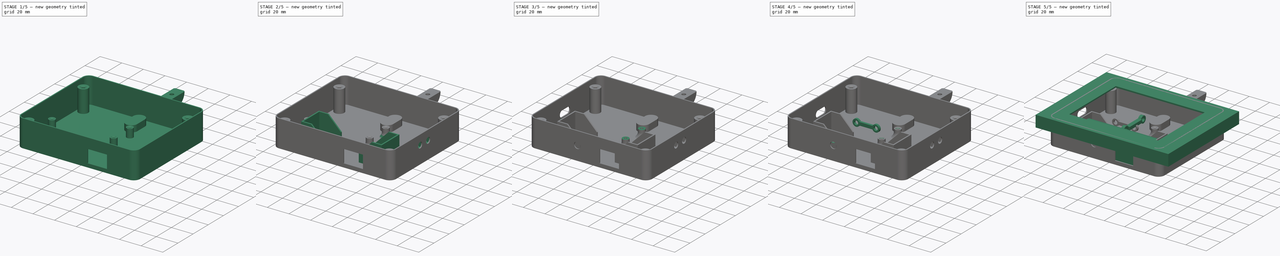
[diagram: build sequence overview — one tinted view per stage of 5, left to right]
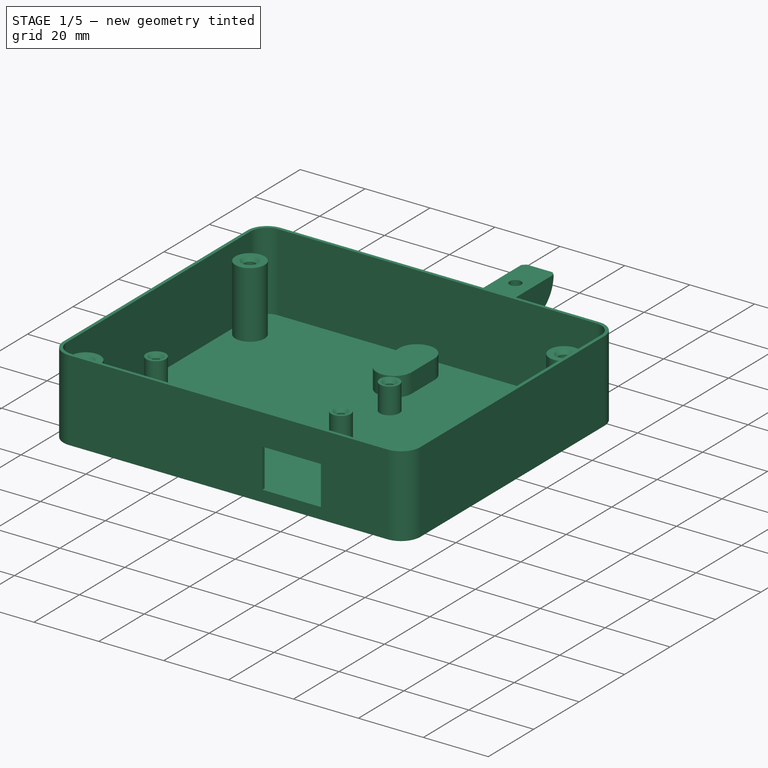
[diagram: stage 1 of 5 — iso view after this stage's code; geometry added in this stage tinted green]
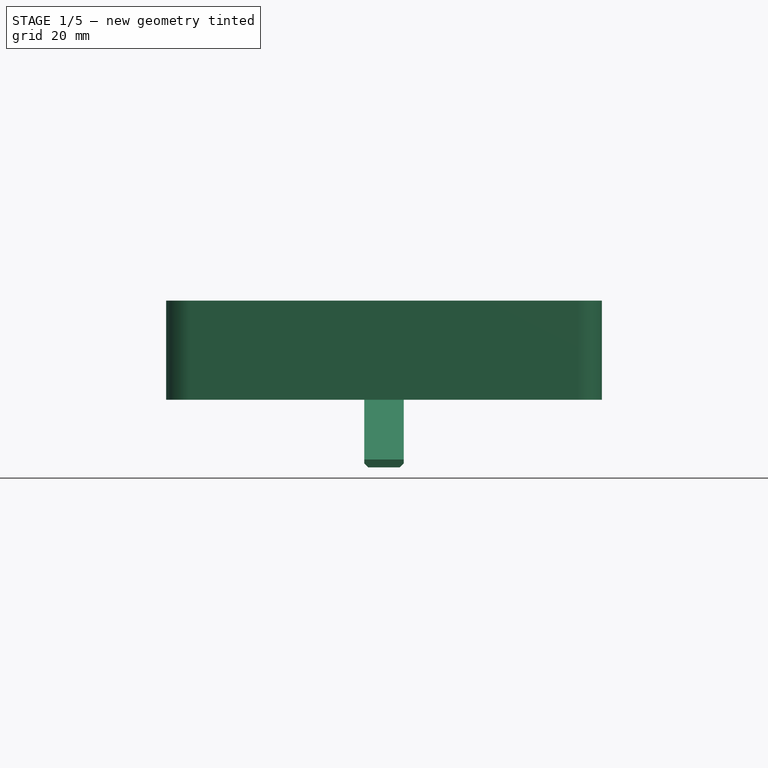
[diagram: stage 1 of 5 — front view after this stage's code; geometry added in this stage tinted green]
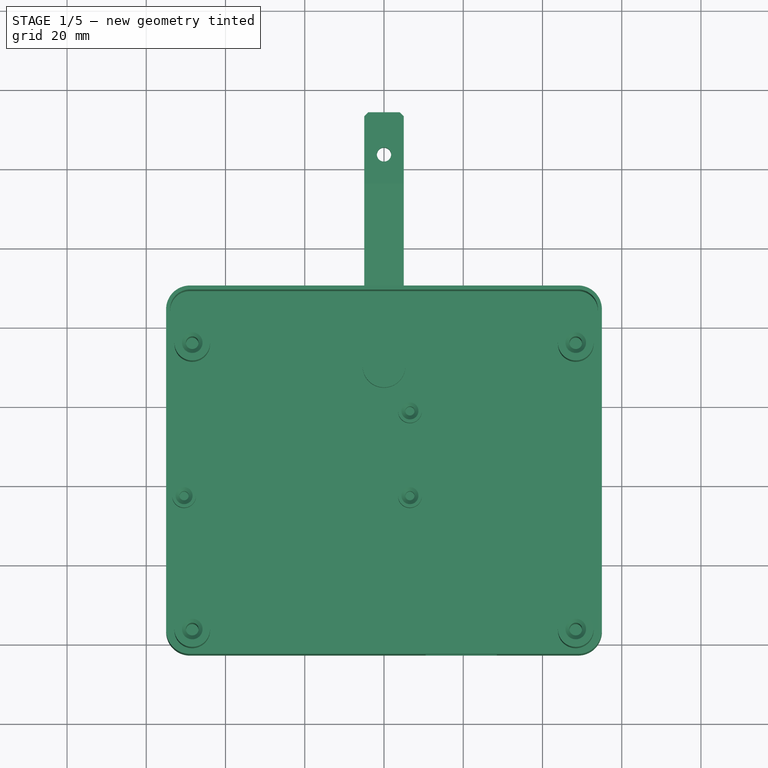
[diagram: stage 1 of 5 — top view after this stage's code; geometry added in this stage tinted green]
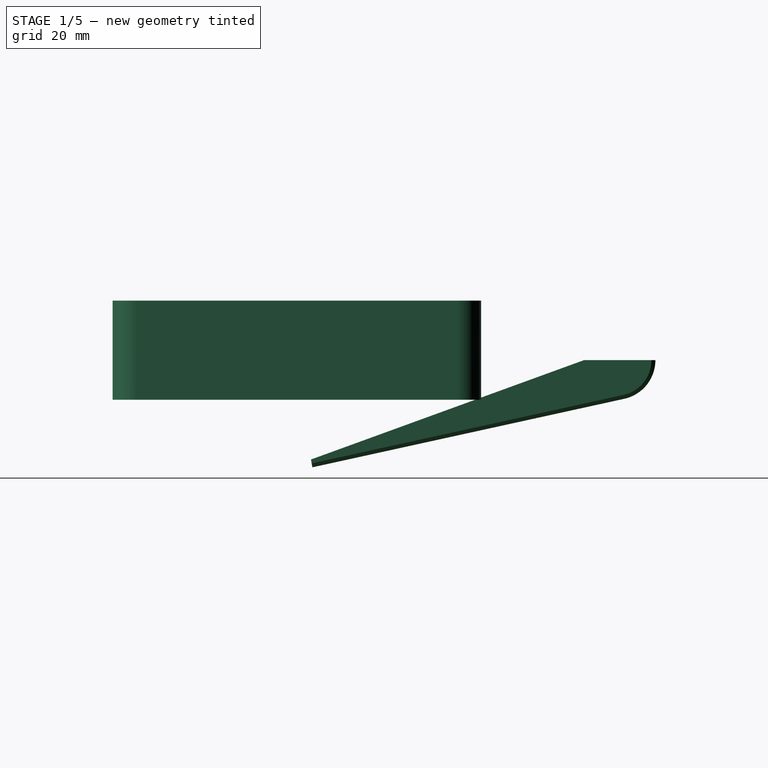
[diagram: stage 1 of 5 — right view after this stage's code; geometry added in this stage tinted green]
FCSTD DOCUMENT  (FreeCAD 0.20R)
Label: WallFrame_bwy42
License: All rights reserved
LicenseURL: http://en.wikipedia.org/wiki/All_rights_reserved
objects: Sketcher::SketchObject×32, Part::Feature×27, PartDesign::Pocket×17, PartDesign::Pad×14, App::Part×12, PartDesign::Chamfer×5, PartDesign::Body×5, PartDesign::FeatureBase×2, PartDesign::Draft×2, Part::Cylinder×1, Part::Box×1, PartDesign::Revolution×1, PartDesign::Fillet×1
note: 148 computed .brp shape members not serialized (recipe doc carries the construction recipe); baked Part::Feature solids carry a one-line shape summary decoded from their .brp

FEATURE [Part::Feature] Body001003002  label="Box"
  shape: bbox 110 x 93 x 25 mm, 57 faces (baked)
FEATURE [PartDesign::FeatureBase] BaseFeature
  BaseFeature = -> Body001003002
FEATURE [Sketcher::SketchObject] Sketch
  FullyConstrained = true
  MapMode = 5
  Placement = pos=(-2.4e-15,-1.2e-14,-24) rot=(0,0,1;0rad)
  Support = -> [BaseFeature]
  sketch-geometry (10):
    g0: Circle CenterX=-50.4591 CenterY=-2.77536 CenterZ=0 NormalX=0 NormalY=0 NormalZ=1 AngleXU=0 Radius=1.15
    g1: LineSegment StartX=-50.4591 StartY=-2.77536 StartZ=0 EndX=6.54092 EndY=-2.77536 EndZ=0
    g2: LineSegment StartX=6.54092 StartY=-2.77536 StartZ=0 EndX=6.54092 EndY=18.6246 EndZ=0
    g3: LineSegment StartX=6.54092 StartY=18.6246 StartZ=0 EndX=-50.4591 EndY=18.6246 EndZ=0
    g4: LineSegment StartX=-50.4591 StartY=18.6246 StartZ=0 EndX=-50.4591 EndY=-2.77536 EndZ=0
    g5: Circle CenterX=6.54092 CenterY=-2.77536 CenterZ=0 NormalX=0 NormalY=0 NormalZ=1 AngleXU=0 Radius=1.15
    g6: Circle CenterX=6.54092 CenterY=18.6246 CenterZ=0 NormalX=0 NormalY=0 NormalZ=1 AngleXU=0 Radius=1.15
    g7: Circle CenterX=-50.4591 CenterY=-2.77536 CenterZ=0 NormalX=0 NormalY=0 NormalZ=1 AngleXU=0 Radius=3
    g8: Circle CenterX=6.54092 CenterY=-2.77536 CenterZ=0 NormalX=0 NormalY=0 NormalZ=1 AngleXU=0 Radius=3
    g9: Circle CenterX=6.54092 CenterY=18.6246 CenterZ=0 NormalX=0 NormalY=0 NormalZ=1 AngleXU=0 Radius=3
  constraints (24):
    c: Radius(g0) = 1.15
    c: Coincident(g1,g2)
    c: Coincident(g2,g3)
    c: Coincident(g3,g4)
    c: Coincident(g4,g1)
    c: Horizontal(g1)
    c: Horizontal(g3)
    c: Vertical(g2)
    c: Vertical(g4)
    c: Coincident(g1,g0)
    c: DistanceX(g0) = -50.4591
    c: DistanceY(g0) = -2.77536
    c: Coincident(g5,g1)
    c: Coincident(g6,g2)
    c: Equal(g6,g5)
    c: Equal(g5,g0)
    c: DistanceX(g3,g3) = 57
    c: DistanceY(g2,g2) = 21.4
    c: Coincident(g7,g0)
    c: Coincident(g8,g5)
    c: Coincident(g9,g6)
    c: Equal(g9,g8)
    c: Equal(g8,g7)
    c: Radius(g7) = 3
FEATURE [PartDesign::Pad] Pad
  BaseFeature = -> BaseFeature
  Direction = (1e-16,5e-16,1)
  Length = 8
  Length2 = 100
  Profile = -> Sketch
  ReferenceAxis = -> Sketch [N_Axis]
  Refine = true
  Type = 0
FEATURE [PartDesign::Chamfer] Chamfer
  Angle = 45
  Base = -> Pad [Edge123,Edge119,Edge121]
  BaseFeature = -> Pad
  ChamferType = 0
  FlipDirection = false
  Refine = true
  Size = 1
  Size2 = 1
  SupportTransform = false
  UseAllEdges = false
FEATURE [Sketcher::SketchObject] Sketch001
  ExternalGeometry = -> [Chamfer]
  FullyConstrained = true
  MapMode = 5
  Placement = pos=(-2.4e-15,-1.2e-14,-24) rot=(0,0,1;0rad)
  Support = -> [Chamfer]
  sketch-geometry (6):
    g0: LineSegment StartX=-47.4591 StartY=-2.77536 StartZ=0 EndX=-47.3591 EndY=-2.77536 EndZ=0
    g1: LineSegment StartX=-47.3591 StartY=-2.77536 StartZ=0 EndX=-47.4607 EndY=-2.67537 EndZ=0
    g2: LineSegment StartX=-47.4607 StartY=-2.67537 StartZ=0 EndX=-47.4591 EndY=-2.77536 EndZ=0
    g3: LineSegment StartX=-53.4574 StartY=-2.67537 StartZ=0 EndX=-53.4591 EndY=-2.77536 EndZ=0
    g4: LineSegment StartX=-53.4591 StartY=-2.77536 StartZ=0 EndX=-53.5591 EndY=-2.77536 EndZ=0
    g5: LineSegment StartX=-53.5591 StartY=-2.77536 StartZ=0 EndX=-53.4574 EndY=-2.67537 EndZ=0
  constraints (18):
    c: PointOnObject(g0,g-4)
    c: Horizontal(g0)
    c: Coincident(g0,g1)
    c: PointOnObject(g1,g-4)
    c: Coincident(g1,g2)
    c: Coincident(g2,g0)
    c: Equal(g2,g0)
    c: DistanceX(g0,g0) = 0.1
    c: PointOnObject(g-4,g0)
    c: Coincident(g3,g4)
    c: Horizontal(g4)
    c: Coincident(g4,g5)
    c: Coincident(g5,g3)
    c: PointOnObject(g3,g-4)
    c: PointOnObject(g-4,g4)
    c: PointOnObject(g3,g-4)
    c: Equal(g3,g4)
    c: Equal(g4,g0)
FEATURE [PartDesign::Pad] Pad001
  BaseFeature = -> Chamfer
  Direction = (1e-16,5e-16,1)
  Length = 0.1
  Length2 = 100
  Profile = -> Sketch001
  ReferenceAxis = -> Sketch001 [N_Axis]
  Refine = true
  Type = 0
FEATURE [PartDesign::Body] Body  label="Box"
  BaseFeature = -> Body001003002
  Group = -> [BaseFeature,Sketch,Pad,Chamfer,Sketch001,Pad001,Sketch002,Revolution,Sketch003,Pocket,Chamfer001,Fillet,Sketch004,Pad002,Chamfer002,Sketch005,Pocket001,Sketch006,Pad003,Sketch007,Pocket002,Sketch008,Pad004,Sketch009,Pocket003,Sketch010,Pocket004,Sketch011,Pocket005,Sketch012,Pad005,Sketch013,Pocket006,Sketch014,Pocket007,Sketch019,Pocket010,Chamfer003,Sketch020,Pad008,Draft,Draft001,Sketch021,+7 more]
  Origin = -> Origin
  Tip = -> Pocket013
FEATURE [App::Part] Part002  label="Box"
  Group = -> [Body001003002,Body,Body001003004,Body001003005]
  Origin = -> Origin013
  Placement = pos=(0,0,-1.4) rot=(0,0,1;0rad)
FEATURE [Sketcher::SketchObject] Sketch028
  FullyConstrained = true
  MapMode = 5
  Placement = pos=(0,0,0) rot=(0.57735,0.57735,0.57735;2.0944rad)
  Support = -> [YZ_Plane019]
  sketch-geometry (9):
    g0: LineSegment StartX=0 StartY=0 StartZ=0 EndX=13.997 EndY=-79.381 EndZ=0
    g1: LineSegment StartX=94 StartY=-15 StartZ=0 EndX=76 EndY=-15 EndZ=0
    g2: LineSegment StartX=76 StartY=-15 StartZ=0 EndX=7.06876 EndY=-40.0889 EndZ=0
    g3: LineSegment StartX=7.06876 StartY=-40.0889 StartZ=0 EndX=7.41605 EndY=-42.0585 EndZ=0
    g4: LineSegment StartX=7.41605 StartY=-42.0585 StartZ=0 EndX=86.1452 EndY=-24.7672 EndZ=0
    g5: LineSegment StartX=76 StartY=-15 StartZ=0 EndX=2.6449 EndY=-15 EndZ=0
    g6: LineSegment StartX=76 StartY=-15 StartZ=0 EndX=4.85683 EndY=-27.5445 EndZ=0
    g7: Circle CenterX=4.85683 CenterY=-27.5445 CenterZ=0 NormalX=0 NormalY=0 NormalZ=1 AngleXU=0 Radius=12.5445
    g8: ArcOfCircle CenterX=84 CenterY=-15 CenterZ=0 NormalX=0 NormalY=0 NormalZ=1 AngleXU=0 Radius=10 StartAngle=4.92859 EndAngle=6.28319
  constraints (26):
    c: Coincident(g0,g-1)
    c: Angle(g0,g-2) = 2.96706
    c: Horizontal(g1)
    c: Coincident(g1,g2)
    c: PointOnObject(g2,g0)
    c: Coincident(g2,g3)
    c: PointOnObject(g3,g0)
    c: Coincident(g3,g4)
    c: DistanceY(g1,g0) = 15
    c: Coincident(g5,g1)
    c: PointOnObject(g5,g0)
    c: Horizontal(g5)
    c: Coincident(g6,g1)
    c: PointOnObject(g6,g0)
    c: Perpendicular(g0,g6)
    c: Coincident(g7,g6)
    c: Tangent(g7,g5)
    c: Tangent(g7,g2)
    c: PointOnObject(g8,g1)
    c: Coincident(g8,g1)
    c: Tangent(g8,g4) = -1.5708
    c: DistanceX(g1) = 94
    c: Diameter(g8) = 20
    c: DistanceX(g1,g1) = 18
    c: Distance(g3) = 2
    c: Equal(g0,g4)
FEATURE [PartDesign::Pad] Pad013
  Direction = (1,-2e-16,3e-16)
  Length = 10
  Length2 = 10
  Midplane = true
  Placement = pos=(0,0,0) rot=(0.57735,0.57735,0.57735;2.0944rad)
  Profile = -> Sketch028
  ReferenceAxis = -> Sketch028 [N_Axis]
  Refine = true
  Type = 0
FEATURE [Sketcher::SketchObject] Sketch029
  FullyConstrained = true
  MapMode = 5
  Placement = pos=(4.2e-15,-6.6e-15,-15) rot=(0,0,-1;1.5708rad)
  Support = -> [Pad013]
  sketch-geometry (1):
    g0: Circle CenterX=-83.35 CenterY=0 CenterZ=0 NormalX=0 NormalY=0 NormalZ=1 AngleXU=0 Radius=1.8
  constraints (3):
    c: PointOnObject(g0,g-1)
    c: DistanceX(g0) = -83.35
    c: Diameter(g0) = 3.6
FEATURE [PartDesign::Pocket] Pocket014
  BaseFeature = -> Pad013
  Direction = (4e-16,-6e-16,-1)
  Length = 2
  Length2 = 5
  Placement = pos=(0,0,0) rot=(0.57735,0.57735,0.57735;2.0944rad)
  Profile = -> Sketch029
  ReferenceAxis = -> Sketch029 [N_Axis]
  Refine = true
  Type = 0
FEATURE [Sketcher::SketchObject] Sketch030
  ExternalGeometry = -> [Pocket014]
  FullyConstrained = true
  MapMode = 5
  Placement = pos=(9.7e-15,-1.68e-14,-17) rot=(0,0,-1;1.5708rad)
  Support = -> [Pocket014]
  sketch-geometry (11):
    g0: LineSegment StartX=-80.35 StartY=1.73205 StartZ=0 EndX=-83.35 EndY=3.4641 EndZ=0
    g1: LineSegment StartX=-83.35 StartY=3.4641 StartZ=0 EndX=-86.35 EndY=1.73205 EndZ=0
    g2: LineSegment StartX=-86.35 StartY=1.73205 StartZ=0 EndX=-86.35 EndY=-1.73205 EndZ=0
    g3: LineSegment StartX=-86.35 StartY=-1.73205 StartZ=0 EndX=-83.35 EndY=-3.4641 EndZ=0
    g4: LineSegment StartX=-83.35 StartY=-3.4641 StartZ=0 EndX=-80.35 EndY=-1.73205 EndZ=0
    g5: LineSegment StartX=-80.35 StartY=-1.73205 StartZ=0 EndX=-80.35 EndY=1.73205 EndZ=0
    g6: Circle CenterX=-83.35 CenterY=-2.7e-15 CenterZ=0 NormalX=0 NormalY=0 NormalZ=1 AngleXU=0 Radius=3.4641
    g7: LineSegment StartX=-86.35 StartY=1.73205 StartZ=0 EndX=-80.35 EndY=1.73205 EndZ=0
    g8: LineSegment StartX=-80.35 StartY=1.73205 StartZ=0 EndX=-80.35 EndY=3.4641 EndZ=0
    g9: LineSegment StartX=-80.35 StartY=3.4641 StartZ=0 EndX=-86.35 EndY=3.4641 EndZ=0
    g10: LineSegment StartX=-86.35 StartY=3.4641 StartZ=0 EndX=-86.35 EndY=1.73205 EndZ=0
  constraints (27):
    c: Coincident(g0,g1)
    c: Coincident(g1,g2)
    c: Coincident(g2,g3)
    c: Coincident(g3,g4)
    c: Coincident(g4,g5)
    c: Coincident(g5,g0)
    c: Equal(g0, g1-g5) x5
    c: PointOnObject(g0,g6)
    c: PointOnObject(g1,g6)
    c: PointOnObject(g2,g6)
    c: PointOnObject(g3,g6)
    c: PointOnObject(g4,g6)
    c: PointOnObject(g5,g6)
    c: Coincident(g6,g-3)
    c: Vertical(g5)
    c: DistanceX(g1,g0) = 6
    c: Coincident(g7,g8)
    c: Coincident(g8,g9)
    c: Coincident(g9,g10)
    c: Coincident(g10,g7)
    c: Horizontal(g7)
    c: Horizontal(g9)
    c: Vertical(g8)
    c: Vertical(g10)
    c: Coincident(g7,g1)
    c: PointOnObject(g0,g9)
    c: PointOnObject(g7,g5)
FEATURE [PartDesign::Pocket] Pocket015
  BaseFeature = -> Pocket014
  Direction = (9e-16,-1.1e-15,-1)
  Length = 3.2
  Length2 = 5
  Placement = pos=(0,0,0) rot=(0.57735,0.57735,0.57735;2.0944rad)
  Profile = -> Sketch030
  ReferenceAxis = -> Sketch030 [N_Axis]
  Refine = true
  Type = 0
FEATURE [Sketcher::SketchObject] Sketch031
  ExternalGeometry = -> [Pocket015]
  FullyConstrained = true
  MapMode = 5
  Placement = pos=(1.88e-14,-2.38e-14,-20.2) rot=(0,0,-1;1.5708rad)
  Support = -> [Pocket015]
  sketch-geometry (1):
    g0: Circle CenterX=-83.35 CenterY=0 CenterZ=0 NormalX=0 NormalY=0 NormalZ=1 AngleXU=0 Radius=1.8
  constraints (2):
    c: Coincident(g0,g-3)
    c: Equal(g0,g-3)
FEATURE [PartDesign::Pocket] Pocket016
  BaseFeature = -> Pocket015
  Direction = (1.3e-15,-1.3e-15,-1)
  Length = 5
  Length2 = 5
  Placement = pos=(0,0,0) rot=(0.57735,0.57735,0.57735;2.0944rad)
  Profile = -> Sketch031
  ReferenceAxis = -> Sketch031 [N_Axis]
  Refine = true
  Type = 1
FEATURE [PartDesign::Chamfer] Chamfer004
  Angle = 45
  Base = -> Pocket016 [Edge8,Edge7]
  BaseFeature = -> Pocket016
  ChamferType = 0
  FlipDirection = false
  Placement = pos=(0,0,0) rot=(0.57735,0.57735,0.57735;2.0944rad)
  Refine = true
  Size = 1
  Size2 = 1
  SupportTransform = false
  UseAllEdges = false
FEATURE [PartDesign::Body] Body001003006  label="Leg"
  Group = -> [Sketch028,Pad013,Sketch029,Pocket014,Sketch030,Pocket015,Sketch031,Pocket016,Chamfer004]
  Origin = -> Origin019
  Tip = -> Chamfer004
FEATURE [App::Part] Part004  label="Leg"
  Group = -> [Body001003006]
  Origin = -> Origin018
  Placement = pos=(0,-46,-11.5) rot=(0,0,1;0rad)
FEATURE [App::Part] Part  label="Box"
  Group = -> [Part001,Part002,Part004]
  Origin = -> Origin008
FEATURE [App::Part] Part003  label="Meteo"
  Group = -> [Wemos_Lolin_D32_v10,Part,Waveshare_4_2__e_Paper_Module_v1,Cylinder,Box]
  Origin = -> Origin015
  Placement = pos=(0,0,0) rot=(1,0,0;1.5708rad)
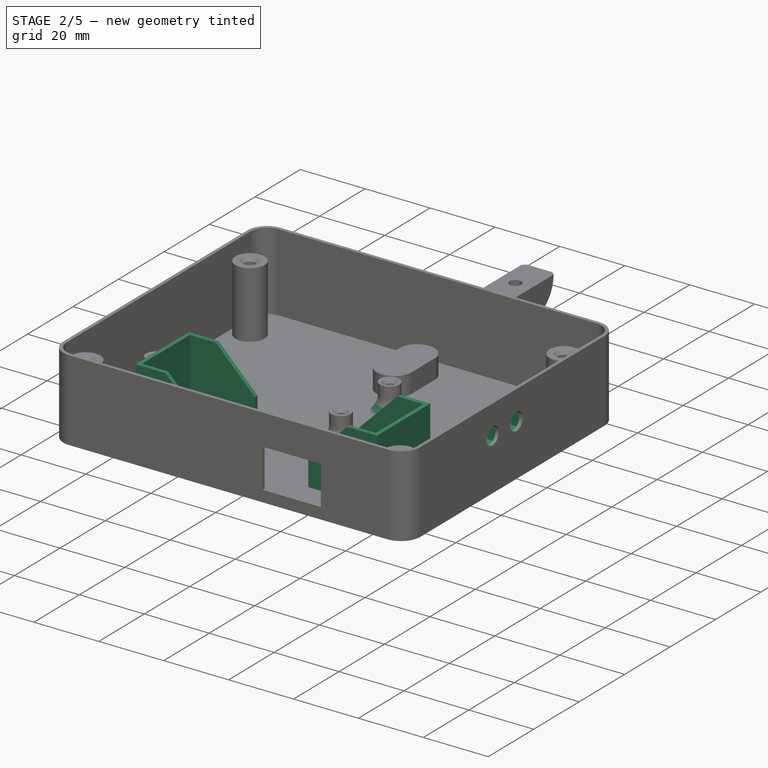
[diagram: stage 2 of 5 — iso view after this stage's code; geometry added in this stage tinted green]
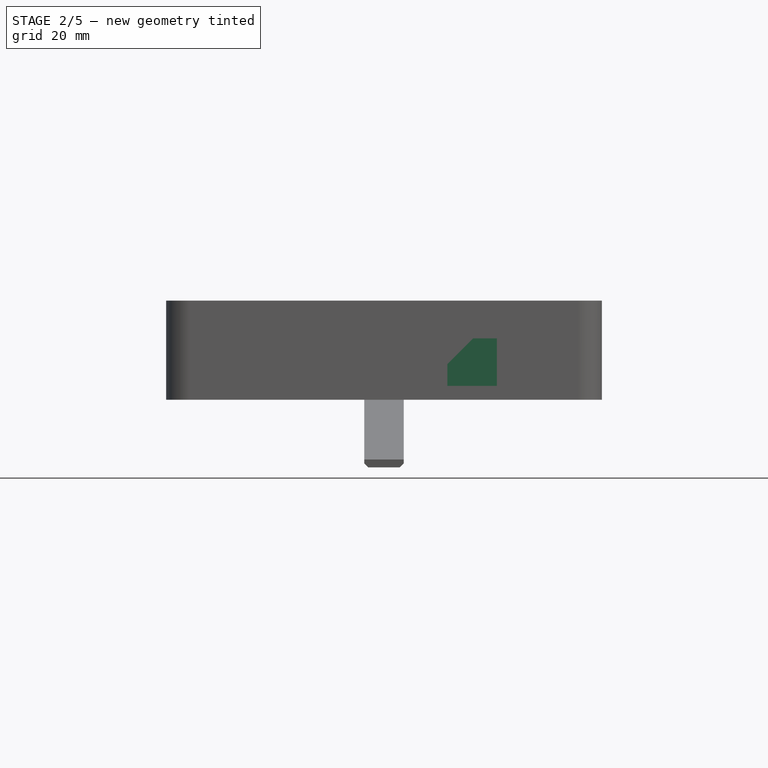
[diagram: stage 2 of 5 — front view after this stage's code; geometry added in this stage tinted green]
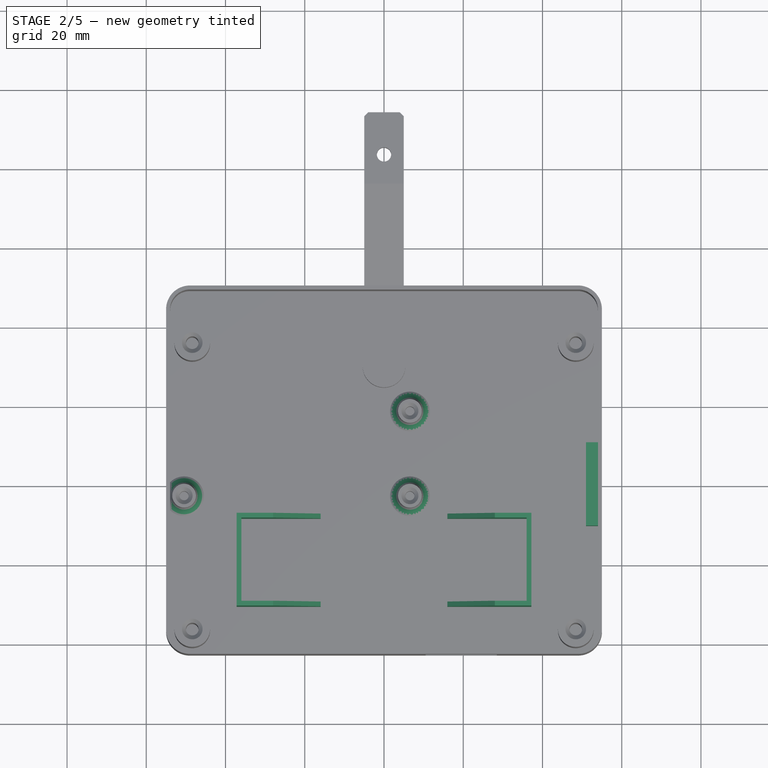
[diagram: stage 2 of 5 — top view after this stage's code; geometry added in this stage tinted green]
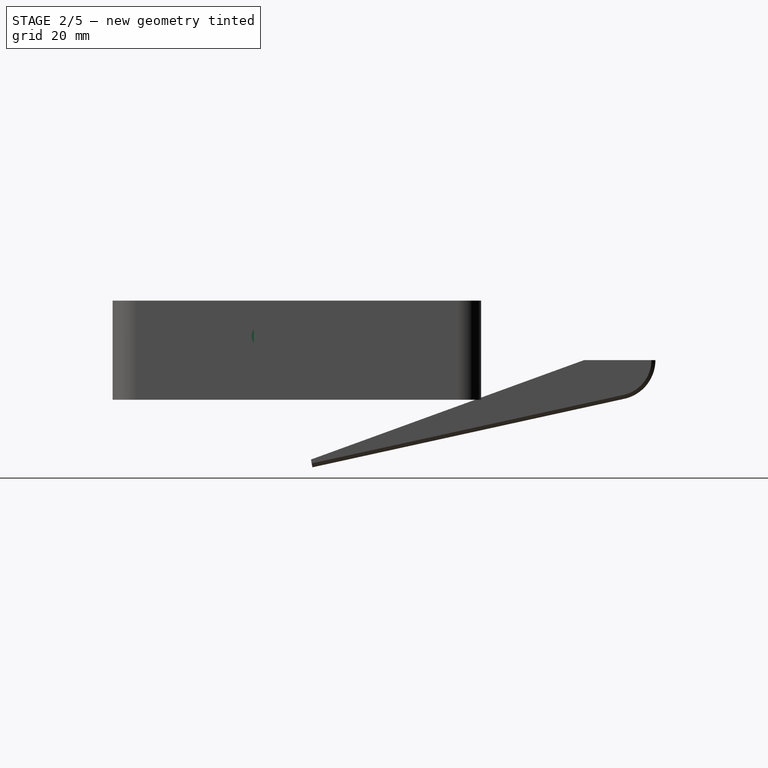
[diagram: stage 2 of 5 — right view after this stage's code; geometry added in this stage tinted green]
FEATURE [Sketcher::SketchObject] Sketch002
  ExternalGeometry = -> [Pad001]
  FullyConstrained = true
  MapMode = 5
  Placement = pos=(0,-2.77536,1.4e-15) rot=(1,0,0;1.5708rad)
  Support = -> [Pad001]
  sketch-geometry (5):
    g0: LineSegment StartX=-50.4591 StartY=-24 StartZ=0 EndX=-50.4591 EndY=-19.4869 EndZ=0
    g1: LineSegment StartX=-47.9591 StartY=-24 StartZ=0 EndX=-45.4591 EndY=-24 EndZ=0
    g2: LineSegment StartX=-45.4591 StartY=-24 StartZ=0 EndX=-45.7017 EndY=-23.7574 EndZ=0
    g3: LineSegment StartX=-47.4591 StartY=-19.5147 StartZ=0 EndX=-47.9591 EndY=-24 EndZ=0
    g4: ArcOfCircle CenterX=-41.4591 CenterY=-19.5147 CenterZ=0 NormalX=0 NormalY=0 NormalZ=1 AngleXU=0 Radius=6 StartAngle=3.14159 EndAngle=3.92699
  constraints (14):
    c: Symmetric(g-3,g-4,g0)
    c: PointOnObject(g0,g-3)
    c: Horizontal(g1)
    c: Coincident(g1,g2)
    c: Coincident(g3,g1)
    c: Equal(g3,g0)
    c: PointOnObject(g-3,g1)
    c: Angle(g2,g1) = 0.785398
    c: DistanceX(g-5,g1) = 2
    c: DistanceX(g1,g-5) = 0.5
    c: Tangent(g4,g-5) = 1.5708
    c: Tangent(g4,g2) = 1.5708
    c: Radius(g4) = 6
    c: Coincident(g3,g4)
FEATURE [PartDesign::Revolution] Revolution
  Angle = 360
  Axis = (0,2e-15,4.51306)
  Base = (-50.4591,-2.77536,-24)
  BaseFeature = -> Pad001
  Profile = -> Sketch002
  ReferenceAxis = -> Sketch002 [Axis0]
  Refine = true
  Reversed = true
FEATURE [Sketcher::SketchObject] Sketch003
  ExternalGeometry = -> [Revolution]
  FullyConstrained = true
  MapMode = 5
  Placement = pos=(0,-1.06e-14,-24) rot=(1,0,0;3.14159rad)
  Support = -> [Revolution]
  sketch-geometry (4):
    g0: LineSegment StartX=-55 StartY=0.68251 StartZ=0 EndX=-59.1857 EndY=0.68251 EndZ=0
    g1: LineSegment StartX=-59.1857 StartY=0.68251 StartZ=0 EndX=-59.1857 EndY=4.8682 EndZ=0
    g2: LineSegment StartX=-59.1857 StartY=4.8682 StartZ=0 EndX=-55 EndY=4.8682 EndZ=0
    g3: LineSegment StartX=-55 StartY=4.8682 StartZ=0 EndX=-55 EndY=0.68251 EndZ=0
  constraints (11):
    c: Coincident(g0,g1)
    c: Coincident(g1,g2)
    c: Coincident(g2,g3)
    c: Coincident(g3,g0)
    c: Horizontal(g0)
    c: Horizontal(g2)
    c: Vertical(g1)
    c: Vertical(g3)
    c: Coincident(g0,g-3)
    c: PointOnObject(g-3,g2)
    c: Equal(g2,g3)
FEATURE [PartDesign::Pocket] Pocket
  BaseFeature = -> Revolution
  Direction = (1,1,1)
  Length = 5
  Length2 = 100
  Profile = -> Sketch003
  Refine = true
  Type = 1
FEATURE [PartDesign::Chamfer] Chamfer001
  Angle = 45
  Base = -> Pocket [Edge6,Edge22]
  BaseFeature = -> Pocket
  ChamferType = 0
  FlipDirection = false
  Refine = true
  Size = 2
  Size2 = 1
  SupportTransform = false
  UseAllEdges = false
FEATURE [PartDesign::Fillet] Fillet
  Base = -> Chamfer001 [Edge2,Edge72]
  BaseFeature = -> Chamfer001
  Radius = 6
  Refine = true
  SupportTransform = false
  UseAllEdges = false
FEATURE [Sketcher::SketchObject] Sketch004
  FullyConstrained = true
  MapMode = 5
  Placement = pos=(-2.4e-15,-1.2e-14,-24) rot=(0,0,1;0rad)
  Support = -> [Fillet]
  sketch-geometry (12):
    g0: LineSegment StartX=-36 StartY=-8.5 StartZ=0 EndX=-16 EndY=-8.5 EndZ=0
    g1: LineSegment StartX=36 StartY=-8.5 StartZ=0 EndX=36 EndY=-29.5 EndZ=0
    g2: LineSegment StartX=36 StartY=-29.5 StartZ=0 EndX=-36 EndY=-29.5 EndZ=0
    g3: LineSegment StartX=-36 StartY=-29.5 StartZ=0 EndX=-36 EndY=-8.5 EndZ=0
    g4: LineSegment StartX=-37.2 StartY=-7.3 StartZ=0 EndX=-16 EndY=-7.3 EndZ=0
    g5: LineSegment StartX=37.2 StartY=-7.3 StartZ=0 EndX=37.2 EndY=-30.7 EndZ=0
    g6: LineSegment StartX=37.2 StartY=-30.7 StartZ=0 EndX=-37.2 EndY=-30.7 EndZ=0
    g7: LineSegment StartX=-37.2 StartY=-30.7 StartZ=0 EndX=-37.2 EndY=-7.3 EndZ=0
    g8: LineSegment StartX=-16 StartY=-7.3 StartZ=0 EndX=-16 EndY=-8.5 EndZ=0
    g9: LineSegment StartX=16 StartY=-7.3 StartZ=0 EndX=16 EndY=-8.5 EndZ=0
    g10: LineSegment StartX=16 StartY=-8.5 StartZ=0 EndX=36 EndY=-8.5 EndZ=0
    g11: LineSegment StartX=16 StartY=-7.3 StartZ=0 EndX=37.2 EndY=-7.3 EndZ=0
  constraints (35):
    c: Coincident(g10,g1)
    c: Coincident(g1,g2)
    c: Coincident(g2,g3)
    c: Coincident(g3,g0)
    c: Horizontal(g2)
    c: Vertical(g1)
    c: Vertical(g3)
    c: DistanceX(g0) = -36
    c: DistanceY(g0) = -8.5
    c: Symmetric(g10,g0,g-2)
    c: DistanceY(g1,g1) = 21
    c: Coincident(g11,g5)
    c: Coincident(g5,g6)
    c: Coincident(g6,g7)
    c: Coincident(g7,g4)
    c: Horizontal(g4)
    c: Horizontal(g6)
    c: Vertical(g5)
    c: Vertical(g7)
    c: DistanceX(g0,g4) = -1.2
    c: DistanceY(g0,g4) = 1.2
    c: DistanceX(g1,g5) = 1.2
    c: DistanceY(g1,g5) = -1.2
    c: Vertical(g8)
    c: Vertical(g9)
    c: DistanceX(g9,g10) = 20
    c: DistanceX(g0,g8) = 20
    c: Coincident(g0,g8)
    c: Coincident(g10,g9)
    c: Coincident(g4,g8)
    c: Coincident(g11,g9)
    c: Horizontal(g0)
    c: Horizontal(g10)
    c: PointOnObject(g9,g4)
    c: Horizontal(g11)
FEATURE [PartDesign::Pad] Pad002
  BaseFeature = -> Fillet
  Direction = (1e-16,5e-16,1)
  Length = 20
  Length2 = 100
  Profile = -> Sketch004
  ReferenceAxis = -> Sketch004 [N_Axis]
  Refine = true
  Type = 0
FEATURE [PartDesign::Chamfer] Chamfer002
  Angle = 45
  Base = -> Pad002 [Edge79,Edge91]
  BaseFeature = -> Pad002
  ChamferType = 0
  FlipDirection = false
  Refine = true
  Size = 12
  Size2 = 1
  SupportTransform = false
  UseAllEdges = false
FEATURE [Sketcher::SketchObject] Sketch005
  ExternalGeometry = -> [Chamfer002]
  FullyConstrained = true
  MapMode = 5
  Placement = pos=(0,-30.7,1.54e-14) rot=(1,0,0;1.5708rad)
  Support = -> [Chamfer002]
  sketch-geometry (6):
    g0: LineSegment StartX=-28 StartY=-4 StartZ=0 EndX=28 EndY=-4 EndZ=0
    g1: LineSegment StartX=28 StartY=-4 StartZ=0 EndX=16 EndY=-16 EndZ=0
    g2: LineSegment StartX=16 StartY=-16 StartZ=0 EndX=16 EndY=-24 EndZ=0
    g3: LineSegment StartX=16 StartY=-24 StartZ=0 EndX=-16 EndY=-24 EndZ=0
    g4: LineSegment StartX=-16 StartY=-24 StartZ=0 EndX=-16 EndY=-16 EndZ=0
    g5: LineSegment StartX=-16 StartY=-16 StartZ=0 EndX=-28 EndY=-4 EndZ=0
  constraints (14):
    c: Coincident(g-3,g0)
    c: Coincident(g0,g-5)
    c: Coincident(g0,g1)
    c: Coincident(g1,g-5)
    c: Coincident(g1,g2)
    c: PointOnObject(g2,g-4)
    c: Vertical(g2)
    c: Coincident(g2,g3)
    c: PointOnObject(g3,g-4)
    c: Coincident(g3,g4)
    c: Coincident(g4,g-3)
    c: Coincident(g4,g5)
    c: Coincident(g5,g0)
    c: Vertical(g4)
FEATURE [PartDesign::Pocket] Pocket001
  BaseFeature = -> Chamfer002
  Direction = (1,1,1)
  Length = 5
  Length2 = 100
  Profile = -> Sketch005
  Refine = true
  Type = 0
FEATURE [Sketcher::SketchObject] Sketch006
  ExternalGeometry = -> [Pocket001]
  FullyConstrained = true
  MapMode = 5
  Placement = pos=(54,0,0) rot=(0.57735,-0.57735,-0.57735;2.0944rad)
  Support = -> [Pocket001]
  sketch-geometry (12):
    g0: LineSegment StartX=-8.5 StartY=-5.7 StartZ=0 EndX=-2 EndY=-5.7 EndZ=0
    g1: LineSegment StartX=-2 StartY=-5.7 StartZ=0 EndX=-2 EndY=-12.2 EndZ=0
    g2: LineSegment StartX=-2 StartY=-12.2 StartZ=0 EndX=-8.5 EndY=-12.2 EndZ=0
    g3: LineSegment StartX=-8.5 StartY=-12.2 StartZ=0 EndX=-8.5 EndY=-5.7 EndZ=0
    g4: LineSegment StartX=2 StartY=-5.7 StartZ=0 EndX=8.5 EndY=-5.7 EndZ=0
    g5: LineSegment StartX=8.5 StartY=-5.7 StartZ=0 EndX=8.5 EndY=-12.2 EndZ=0
    g6: LineSegment StartX=8.5 StartY=-12.2 StartZ=0 EndX=2 EndY=-12.2 EndZ=0
    g7: LineSegment StartX=2 StartY=-12.2 StartZ=0 EndX=2 EndY=-5.7 EndZ=0
    g8: LineSegment StartX=-10.5 StartY=-4.5 StartZ=0 EndX=10.5 EndY=-4.5 EndZ=0
    g9: LineSegment StartX=10.5 StartY=-4.5 StartZ=0 EndX=10.5 EndY=-13.4 EndZ=0
    g10: LineSegment StartX=10.5 StartY=-13.4 StartZ=0 EndX=-10.5 EndY=-13.4 EndZ=0
    g11: LineSegment StartX=-10.5 StartY=-13.4 StartZ=0 EndX=-10.5 EndY=-4.5 EndZ=0
  constraints (35):
    c: Coincident(g0,g1)
    c: Coincident(g1,g2)
    c: Coincident(g2,g3)
    c: Coincident(g3,g0)
    c: Horizontal(g0)
    c: Horizontal(g2)
    c: Vertical(g1)
    c: Vertical(g3)
    c: Coincident(g4,g5)
    c: Coincident(g5,g6)
    c: Coincident(g6,g7)
    c: Coincident(g7,g4)
    c: Horizontal(g4)
    c: Horizontal(g6)
    c: Vertical(g5)
    c: Vertical(g7)
    c: Equal(g7,g6)
    c: Equal(g6,g1)
    c: Equal(g1,g2)
    c: DistanceX(g0,g0) = 6.5
    c: PointOnObject(g4,g0)
    c: DistanceX(g0,g4) = 4
    c: Coincident(g8,g9)
    c: Coincident(g9,g10)
    c: Coincident(g10,g11)
    c: Coincident(g11,g8)
    c: Horizontal(g10)
    c: Vertical(g9)
    c: Vertical(g11)
    c: DistanceX(g0,g8) = -2
    c: DistanceY(g0,g8) = 1.2
    c: DistanceX(g5,g9) = 2
    c: DistanceY(g5,g9) = -1.2
    c: PointOnObject(g8,g-3)
    c: Symmetric(g8,g8,g-2)
FEATURE [PartDesign::Pad] Pad003
  BaseFeature = -> Pocket001
  Direction = (-1,0,0)
  Length = 3
  Length2 = 100
  Profile = -> Sketch006
  ReferenceAxis = -> Sketch006 [N_Axis]
  Refine = true
  Type = 0
FEATURE [Sketcher::SketchObject] Sketch007
  ExternalGeometry = -> [Pad003]
  FullyConstrained = true
  MapMode = 5
  Placement = pos=(54,0,0) rot=(0.57735,-0.57735,-0.57735;2.0944rad)
  Support = -> [Pad003]
  sketch-geometry (4):
    g0: LineSegment StartX=-8.5 StartY=-5.7 StartZ=0 EndX=-5.25 EndY=-8.95 EndZ=0
    g1: LineSegment StartX=-5.25 StartY=-8.95 StartZ=0 EndX=-2 EndY=-5.7 EndZ=0
    g2: Circle CenterX=-5.25 CenterY=-8.95 CenterZ=0 NormalX=0 NormalY=0 NormalZ=1 AngleXU=0 Radius=2.7
    g3: Circle CenterX=5.25 CenterY=-8.95 CenterZ=0 NormalX=0 NormalY=0 NormalZ=1 AngleXU=0 Radius=2.7
  constraints (9):
    c: Coincident(g-3,g0)
    c: Coincident(g0,g1)
    c: Coincident(g1,g-4)
    c: Coincident(g2,g0)
    c: Diameter(g2) = 5.4
    c: Equal(g0,g1)
    c: PointOnObject(g-4,g0)
    c: Equal(g3,g2)
    c: Symmetric(g3,g2,g-2)
FEATURE [PartDesign::Pocket] Pocket002
  BaseFeature = -> Pad003
  Direction = (1,1,1)
  Length = 5
  Length2 = 100
  Profile = -> Sketch007
  Refine = true
  Type = 1
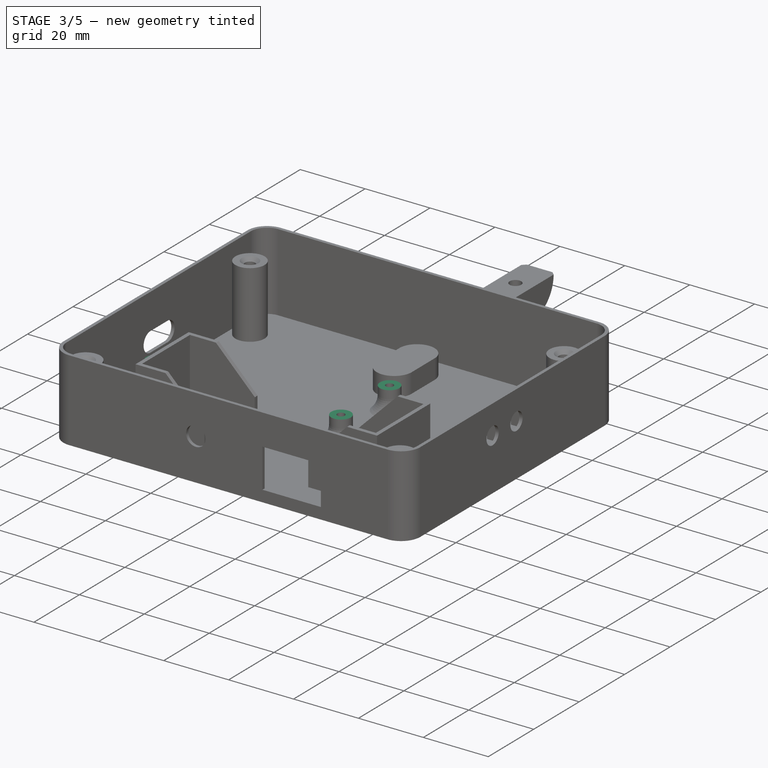
[diagram: stage 3 of 5 — iso view after this stage's code; geometry added in this stage tinted green]
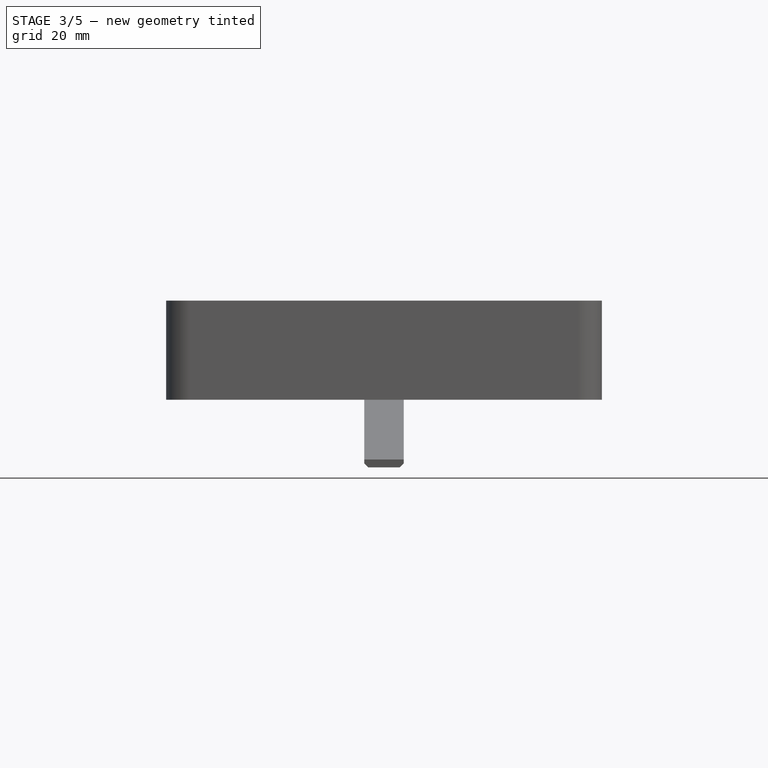
[diagram: stage 3 of 5 — front view after this stage's code; geometry added in this stage tinted green]
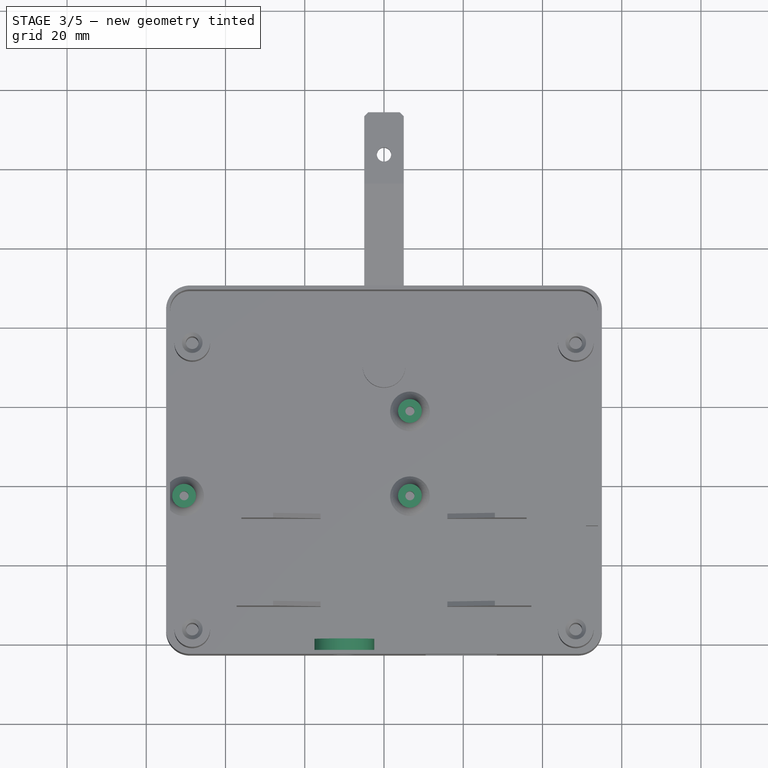
[diagram: stage 3 of 5 — top view after this stage's code; geometry added in this stage tinted green]
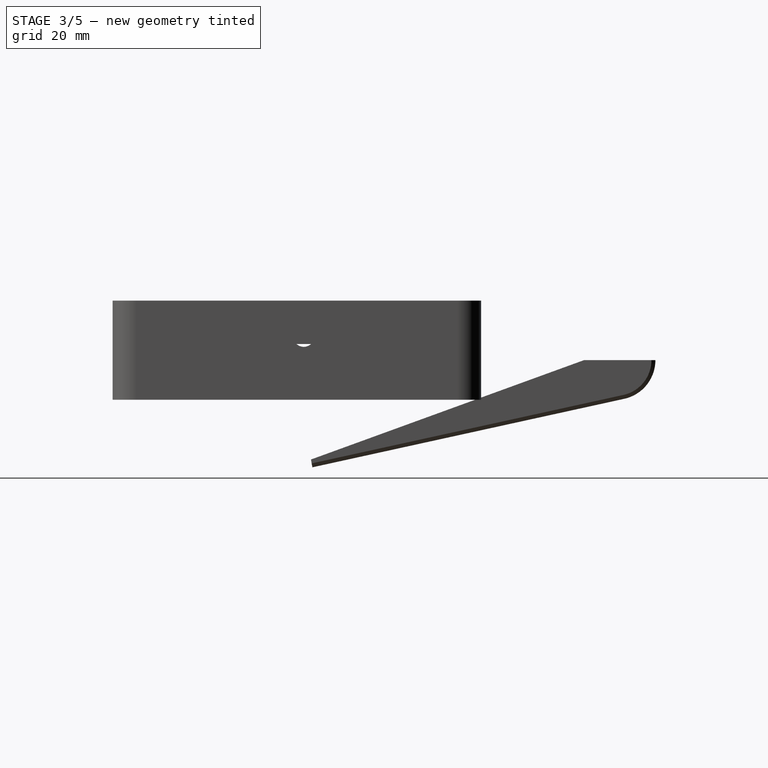
[diagram: stage 3 of 5 — right view after this stage's code; geometry added in this stage tinted green]
FEATURE [Sketcher::SketchObject] Sketch008
  ExternalGeometry = -> [Pocket002]
  FullyConstrained = true
  MapMode = 5
  Placement = pos=(2.9e-15,-42,2.6e-14) rot=(0,0.707107,0.707107;3.14159rad)
  Support = -> [Pocket002]
  sketch-geometry (5):
    g0: Circle CenterX=10 CenterY=-12.05 CenterZ=0 NormalX=0 NormalY=0 NormalZ=1 AngleXU=0 Radius=6.35
    g1: ArcOfCircle CenterX=10 CenterY=-12.05 CenterZ=0 NormalX=0 NormalY=0 NormalZ=1 AngleXU=0 Radius=7.55 StartAngle=5.49779 EndAngle=10.2102
    g2: LineSegment StartX=4.66134 StartY=-17.3887 StartZ=0 EndX=10 EndY=-22.7273 EndZ=0
    g3: LineSegment StartX=10 StartY=-22.7273 StartZ=0 EndX=15.3387 EndY=-17.3887 EndZ=0
    g4: LineSegment StartX=10 StartY=-22.7273 StartZ=0 EndX=10 EndY=-12.05 EndZ=0
  constraints (12):
    c: Diameter(g0) = 12.7
    c: Coincident(g1,g0)
    c: Tangent(g1,g2) = -1.5708
    c: Coincident(g2,g3)
    c: Tangent(g3,g1) = -1.5708
    c: Diameter(g1) = 15.1
    c: Coincident(g4,g0)
    c: Vertical(g4)
    c: Coincident(g2,g4)
    c: Perpendicular(g2,g3)
    c: Tangent(g-3,g1)
    c: DistanceX(g-1,g2) = 10
FEATURE [PartDesign::Pad] Pad004
  BaseFeature = -> Pocket002
  Direction = (-1e-16,1,-7e-16)
  Length = 3
  Length2 = 100
  Profile = -> Sketch008
  ReferenceAxis = -> Sketch008 [N_Axis]
  Refine = true
  Type = 0
FEATURE [Sketcher::SketchObject] Sketch009
  ExternalGeometry = -> [Pad004]
  FullyConstrained = true
  MapMode = 5
  Placement = pos=(0,-39,3.12e-14) rot=(0,0.707107,0.707107;3.14159rad)
  Support = -> [Pad004]
  sketch-geometry (4):
    g0: LineSegment StartX=10 StartY=-22.7273 StartZ=0 EndX=9.5 EndY=-22.7273 EndZ=0
    g1: LineSegment StartX=9.5 StartY=-22.7273 StartZ=0 EndX=9.5 EndY=-22.2273 EndZ=0
    g2: LineSegment StartX=9.5 StartY=-22.2273 StartZ=0 EndX=10 EndY=-22.2273 EndZ=0
    g3: LineSegment StartX=10 StartY=-22.2273 StartZ=0 EndX=10 EndY=-22.7273 EndZ=0
  constraints (11):
    c: Coincident(g0,g1)
    c: Coincident(g1,g2)
    c: Coincident(g2,g3)
    c: Coincident(g3,g0)
    c: Horizontal(g0)
    c: Horizontal(g2)
    c: Vertical(g1)
    c: Vertical(g3)
    c: Coincident(g0,g-3)
    c: PointOnObject(g1,g-3)
    c: DistanceY(g3,g3) = 0.5
FEATURE [PartDesign::Pocket] Pocket003
  BaseFeature = -> Pad004
  Direction = (1,1,1)
  Length = 0.5
  Length2 = 100
  Profile = -> Sketch009
  Refine = true
  Type = 0
FEATURE [Sketcher::SketchObject] Sketch010
  ExternalGeometry = -> [Pocket003]
  FullyConstrained = true
  MapMode = 5
  Placement = pos=(-10,0,0) rot=(0.57735,0.57735,0.57735;2.0944rad)
  Support = -> [Pocket003]
  sketch-geometry (3):
    g0: LineSegment StartX=-41.9 StartY=-22.7273 StartZ=0 EndX=-39 EndY=-18.7273 EndZ=0
    g1: LineSegment StartX=-39 StartY=-18.7273 StartZ=0 EndX=-39 EndY=-22.7273 EndZ=0
    g2: LineSegment StartX=-39 StartY=-22.7273 StartZ=0 EndX=-41.9 EndY=-22.7273 EndZ=0
  constraints (9):
    c: Coincident(g0,g1)
    c: Vertical(g1)
    c: Coincident(g1,g2)
    c: Horizontal(g2)
    c: PointOnObject(g1,g-4)
    c: DistanceY(g1,g1) = 4
    c: PointOnObject(g2,g-3)
    c: Coincident(g0,g2)
    c: DistanceX(g-3,g0) = 0.1
FEATURE [PartDesign::Pocket] Pocket004
  BaseFeature = -> Pocket003
  Direction = (1,1,1)
  Length = 10
  Length2 = 100
  Midplane = true
  Profile = -> Sketch010
  Refine = true
  Type = 0
FEATURE [Sketcher::SketchObject] Sketch011
  ExternalGeometry = -> [Pocket004]
  FullyConstrained = true
  MapMode = 5
  Placement = pos=(2.9e-15,-42,2.6e-14) rot=(0,0.707107,0.707107;3.14159rad)
  Support = -> [Pocket004]
  sketch-geometry (1):
    g0: Circle CenterX=10 CenterY=-12.05 CenterZ=0 NormalX=0 NormalY=0 NormalZ=1 AngleXU=0 Radius=3
  constraints (2):
    c: Coincident(g0,g-3)
    c: Diameter(g0) = 6
FEATURE [PartDesign::Pocket] Pocket005
  BaseFeature = -> Pocket004
  Direction = (1,1,1)
  Length = 5
  Length2 = 100
  Profile = -> Sketch011
  Refine = true
  Type = 1
FEATURE [Sketcher::SketchObject] Sketch012
  ExternalGeometry = -> [Pocket005]
  FullyConstrained = true
  MapMode = 5
  Placement = pos=(54,0,0) rot=(0.57735,-0.57735,-0.57735;2.0944rad)
  Support = -> [Pocket005]
  sketch-geometry (4):
    g0: LineSegment StartX=-10.5 StartY=-13.4 StartZ=0 EndX=-3.5718 EndY=-17.4 EndZ=0
    g1: LineSegment StartX=-3.5718 StartY=-17.4 StartZ=0 EndX=3.5718 EndY=-17.4 EndZ=0
    g2: LineSegment StartX=3.5718 StartY=-17.4 StartZ=0 EndX=10.5 EndY=-13.4 EndZ=0
    g3: LineSegment StartX=10.5 StartY=-13.4 StartZ=0 EndX=-10.5 EndY=-13.4 EndZ=0
  constraints (10):
    c: Coincident(g-3,g0)
    c: Coincident(g0,g1)
    c: Horizontal(g1)
    c: Coincident(g1,g2)
    c: Coincident(g2,g-3)
    c: Angle(g-3,g2) = 0.523599
    c: Equal(g0,g2)
    c: DistanceY(g0,g0) = 4
    c: Coincident(g3,g2)
    c: Coincident(g0,g3)
FEATURE [PartDesign::Pad] Pad005
  BaseFeature = -> Pocket005
  Direction = (-1,0,0)
  Length = 3
  Length2 = 100
  Profile = -> Sketch012
  ReferenceAxis = -> Sketch012 [N_Axis]
  Refine = true
  Type = 0
FEATURE [Sketcher::SketchObject] Sketch013
  ExternalGeometry = -> [Pad005]
  FullyConstrained = true
  MapMode = 5
  Placement = pos=(0,10.5,0) rot=(0,0.707107,0.707107;3.14159rad)
  Support = -> [Pad005]
  sketch-geometry (3):
    g0: LineSegment StartX=-53.9 StartY=-17.4 StartZ=0 EndX=-51 EndY=-13.4 EndZ=0
    g1: LineSegment StartX=-51 StartY=-13.4 StartZ=0 EndX=-51 EndY=-17.4 EndZ=0
    g2: LineSegment StartX=-51 StartY=-17.4 StartZ=0 EndX=-53.9 EndY=-17.4 EndZ=0
  constraints (7):
    c: Coincident(g0,g-4)
    c: Coincident(g0,g1)
    c: Coincident(g1,g-3)
    c: Coincident(g1,g2)
    c: Coincident(g0,g2)
    c: PointOnObject(g0,g-3)
    c: DistanceX(g-3,g0) = 0.1
FEATURE [PartDesign::Pocket] Pocket006
  BaseFeature = -> Pad005
  Direction = (1,1,1)
  Length = 25
  Length2 = 100
  Profile = -> Sketch013
  Refine = true
  Type = 0
FEATURE [Sketcher::SketchObject] Sketch014
  FullyConstrained = true
  MapMode = 5
  Placement = pos=(-55,1.59e-14,8.8528e-12) rot=(0.57735,-0.57735,-0.57735;2.0944rad)
  Support = -> [Pocket006]
  sketch-geometry (4):
    g0: ArcOfCircle CenterX=-7.42591 CenterY=-13.9238 CenterZ=0 NormalX=0 NormalY=0 NormalZ=1 AngleXU=0 Radius=3 StartAngle=1.5708 EndAngle=4.71239
    g1: ArcOfCircle CenterX=0.174091 CenterY=-13.9238 CenterZ=0 NormalX=0 NormalY=0 NormalZ=1 AngleXU=0 Radius=3 StartAngle=4.71239 EndAngle=7.85398
    g2: LineSegment StartX=-7.42591 StartY=-16.9238 StartZ=0 EndX=0.174091 EndY=-16.9238 EndZ=0
    g3: LineSegment StartX=0.174091 StartY=-10.9238 StartZ=0 EndX=-7.42591 EndY=-10.9238 EndZ=0
  constraints (10):
    c: Tangent(g0,g2) = -1.5708
    c: Tangent(g2,g1) = -1.5708
    c: Tangent(g1,g3) = -1.5708
    c: Tangent(g3,g0) = -1.5708
    c: Equal(g0,g1)
    c: Horizontal(g3)
    c: DistanceX(g0) = -7.42591
    c: DistanceY(g0) = -13.9238
    c: DistanceX(g3,g3) = 7.6
    c: Diameter(g0) = 6
FEATURE [PartDesign::Pocket] Pocket007
  BaseFeature = -> Pocket006
  Direction = (1,1,1)
  Length = 5
  Length2 = 100
  Profile = -> Sketch014
  Refine = true
  Type = 0
FEATURE [PartDesign::Body] Body001003003  label="Frame"
  BaseFeature = -> Body001002
  Group = -> [BaseFeature001,Sketch015,Pocket008,Sketch016,Pad006,Sketch017,Pocket009,Sketch018,Pad007]
  Origin = -> Origin014
  Tip = -> Pad007
FEATURE [App::Part] Part001  label="Frame"
  Group = -> [Body001002,Body001003003]
  Origin = -> Origin012
FEATURE [Sketcher::SketchObject] Sketch019
  FullyConstrained = false
  MapMode = 5
  Placement = pos=(0,0,-16) rot=(0,0,1;0rad)
  Support = -> [Pocket007]
  sketch-geometry (7):
    g0: LineSegment StartX=-53.4614 StartY=2.33407 StartZ=0 EndX=-53.8505 EndY=-9.36706 EndZ=0
    g1: LineSegment StartX=-53.8505 StartY=-9.36706 StartZ=0 EndX=-33.9558 EndY=-4.51222 EndZ=0
    g2: LineSegment StartX=-33.9558 StartY=-4.51222 StartZ=0 EndX=12.4771 EndY=-8.13912 EndZ=0
    g3: LineSegment StartX=12.4771 StartY=-8.13912 StartZ=0 EndX=10.8135 EndY=1.77427 EndZ=0
    g4: LineSegment StartX=10.8135 StartY=1.77427 StartZ=0 EndX=10.8135 EndY=23.0187 EndZ=0
    g5: LineSegment StartX=10.8135 StartY=23.0187 StartZ=0 EndX=-0.308499 EndY=23.0187 EndZ=0
    g6: LineSegment StartX=-0.308499 StartY=23.0187 StartZ=0 EndX=-53.4614 EndY=2.33407 EndZ=0
  constraints (9):
    c: Coincident(g0,g1)
    c: Coincident(g1,g2)
    c: Coincident(g2,g3)
    c: Coincident(g3,g4)
    c: Vertical(g4)
    c: Coincident(g4,g5)
    c: Horizontal(g5)
    c: Coincident(g5,g6)
    c: Coincident(g6,g0)
FEATURE [PartDesign::Pocket] Pocket010
  BaseFeature = -> Pocket007
  Direction = (1,1,1)
  Length = 1
  Length2 = 100
  Profile = -> Sketch019
  Refine = true
  Type = 0
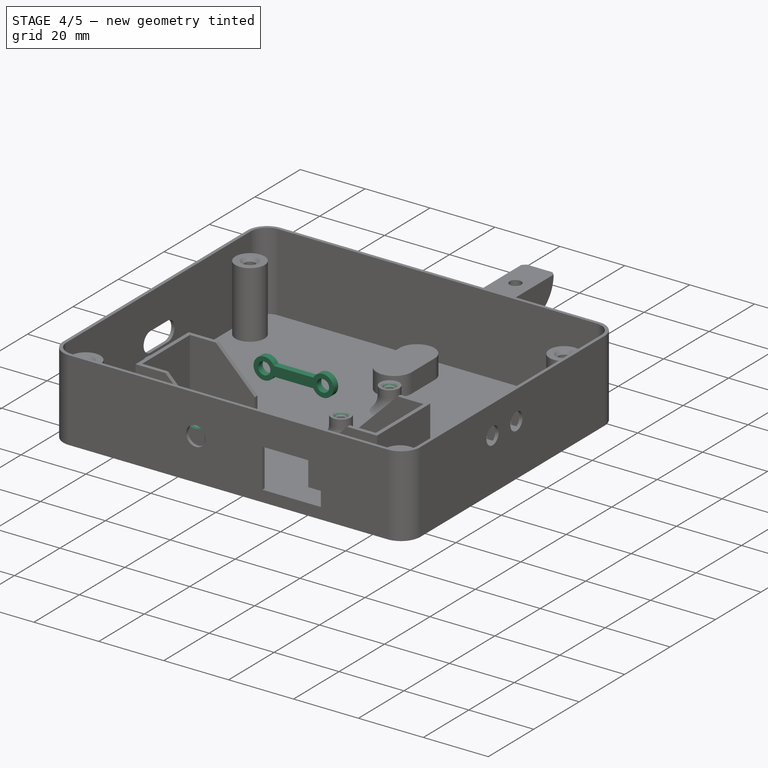
[diagram: stage 4 of 5 — iso view after this stage's code; geometry added in this stage tinted green]
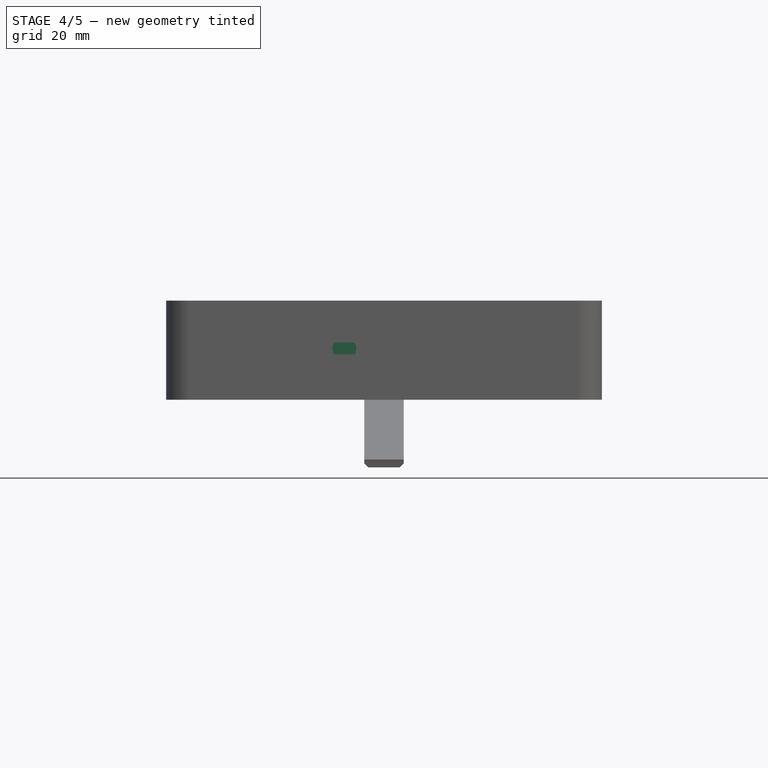
[diagram: stage 4 of 5 — front view after this stage's code; geometry added in this stage tinted green]
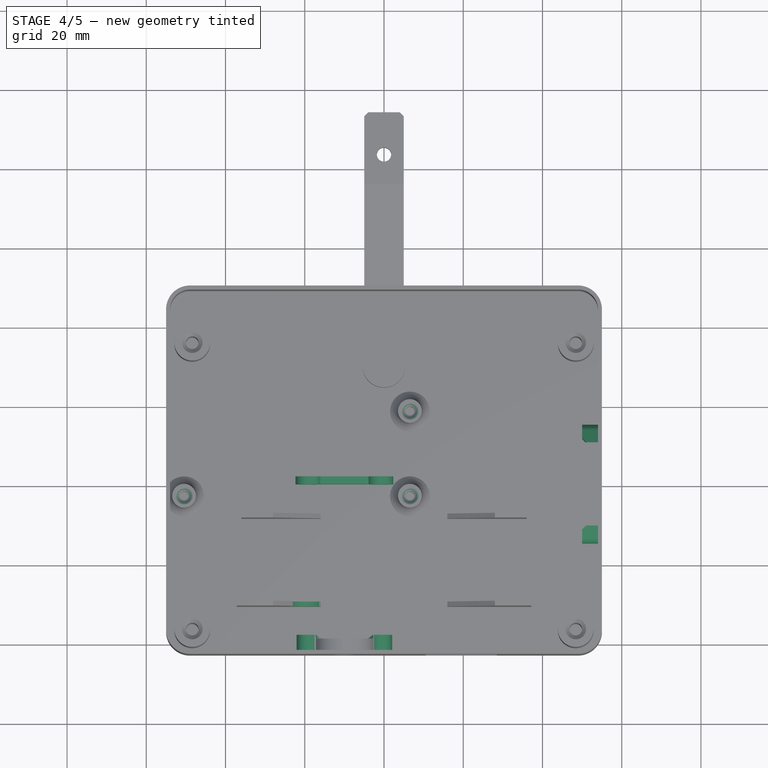
[diagram: stage 4 of 5 — top view after this stage's code; geometry added in this stage tinted green]
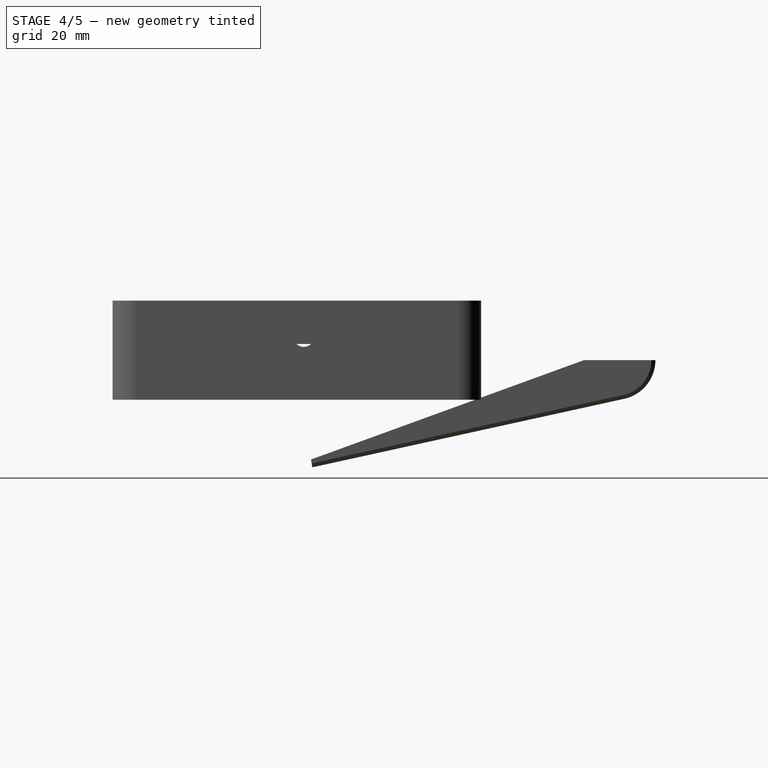
[diagram: stage 4 of 5 — right view after this stage's code; geometry added in this stage tinted green]
FEATURE [PartDesign::Chamfer] Chamfer003
  Angle = 45
  Base = -> Pocket010 [Edge289,Edge288,Edge287]
  BaseFeature = -> Pocket010
  ChamferType = 0
  FlipDirection = false
  Refine = true
  Size = 1
  Size2 = 1
  SupportTransform = false
  UseAllEdges = false
FEATURE [Sketcher::SketchObject] Sketch020
  ExternalGeometry = -> [Chamfer003]
  FullyConstrained = true
  MapMode = 5
  Placement = pos=(54,0,0) rot=(0.57735,-0.57735,-0.57735;2.0944rad)
  Support = -> [Chamfer003]
  sketch-geometry (11):
    g0: Circle CenterX=-12 CenterY=-8.95 CenterZ=0 NormalX=0 NormalY=0 NormalZ=1 AngleXU=0 Radius=1.5
    g1: LineSegment StartX=-12 StartY=-8.95 StartZ=0 EndX=-5.25 EndY=-8.95 EndZ=0
    g2: Circle CenterX=12 CenterY=-8.95 CenterZ=0 NormalX=0 NormalY=0 NormalZ=1 AngleXU=0 Radius=1.5
    g3: ArcOfCircle CenterX=-12 CenterY=-8.95 CenterZ=0 NormalX=0 NormalY=0 NormalZ=1 AngleXU=0 Radius=3 StartAngle=2.12349 EndAngle=4.1597
    g4: LineSegment StartX=-13.5749 StartY=-6.39665 StartZ=0 EndX=-10.5 EndY=-4.5 EndZ=0
    g5: LineSegment StartX=-10.5 StartY=-4.5 StartZ=0 EndX=-10.5 EndY=-13.4 EndZ=0
    g6: LineSegment StartX=-10.5 StartY=-13.4 StartZ=0 EndX=-13.5749 EndY=-11.5033 EndZ=0
    g7: LineSegment StartX=13.5749 StartY=-6.39665 StartZ=0 EndX=10.5 EndY=-4.5 EndZ=0
    g8: LineSegment StartX=10.5 StartY=-4.5 StartZ=0 EndX=10.5 EndY=-13.4 EndZ=0
    g9: LineSegment StartX=10.5 StartY=-13.4 StartZ=0 EndX=13.5749 EndY=-11.5033 EndZ=0
    g10: ArcOfCircle CenterX=12 CenterY=-8.95 CenterZ=0 NormalX=0 NormalY=0 NormalZ=1 AngleXU=0 Radius=3 StartAngle=5.26508 EndAngle=7.30129
  constraints (24):
    c: Diameter(g0) = 3
    c: Tangent(g0,g-3)
    c: Coincident(g1,g0)
    c: Coincident(g1,g-4)
    c: Horizontal(g1)
    c: PointOnObject(g2,g1)
    c: Equal(g2,g0)
    c: Tangent(g2,g-5)
    c: Coincident(g3,g0)
    c: Tangent(g3,g4) = 1.5708
    c: Coincident(g4,g5)
    c: Coincident(g5,g-3)
    c: Coincident(g5,g6)
    c: Coincident(g4,g-3)
    c: Tangent(g6,g3) = 1.5708
    c: Coincident(g7,g-5)
    c: Coincident(g7,g8)
    c: Coincident(g8,g-5)
    c: Coincident(g8,g9)
    c: Coincident(g10,g2)
    c: Tangent(g10,g9) = -1.5708
    c: Tangent(g10,g7) = -1.5708
    c: Equal(g10,g3)
    c: Diameter(g3) = 6
FEATURE [PartDesign::Pad] Pad008
  BaseFeature = -> Chamfer003
  Direction = (-1,0,0)
  Length = 4
  Length2 = 10
  Profile = -> Sketch020
  ReferenceAxis = -> Sketch020 [N_Axis]
  Refine = true
  Type = 0
FEATURE [PartDesign::Draft] Draft
  Angle = 45
  Base = -> Pad008 [Face97]
  BaseFeature = -> Pad008
  NeutralPlane = -> Pad008 [Face96]
  Refine = true
  SupportTransform = false
FEATURE [PartDesign::Draft] Draft001
  Angle = 45
  Base = -> Draft [Face94]
  BaseFeature = -> Draft
  NeutralPlane = -> Draft [Face96]
  Refine = true
  SupportTransform = false
FEATURE [Sketcher::SketchObject] Sketch021
  ExternalGeometry = -> [Draft001]
  FullyConstrained = true
  MapMode = 5
  Placement = pos=(50,0,0) rot=(0.57735,-0.57735,-0.57735;2.0944rad)
  Support = -> [Draft001]
  sketch-geometry (2):
    g0: Circle CenterX=-12 CenterY=-8.95 CenterZ=0 NormalX=0 NormalY=0 NormalZ=1 AngleXU=0 Radius=1.5
    g1: Circle CenterX=12 CenterY=-8.95 CenterZ=0 NormalX=0 NormalY=0 NormalZ=1 AngleXU=0 Radius=1.5
  constraints (4):
    c: Coincident(g0,g-4)
    c: Coincident(g1,g-3)
    c: Equal(g1,g0)
    c: Diameter(g0) = 3
FEATURE [PartDesign::Pocket] Pocket011
  BaseFeature = -> Draft001
  Direction = (1,0,0)
  Length = 4
  Length2 = 5
  Profile = -> Sketch021
  ReferenceAxis = -> Sketch021 [N_Axis]
  Refine = true
  Type = 0
FEATURE [Sketcher::SketchObject] Sketch022
  ExternalGeometry = -> [Pocket011]
  FullyConstrained = true
  MapMode = 5
  Placement = pos=(2.9e-15,-42,2.6e-14) rot=(0,0.707107,0.707107;3.14159rad)
  Support = -> [Pocket011]
  sketch-geometry (11):
    g0: Circle CenterX=0.95 CenterY=-12.05 CenterZ=0 NormalX=0 NormalY=0 NormalZ=1 AngleXU=0 Radius=1.5
    g1: Circle CenterX=19.05 CenterY=-12.05 CenterZ=0 NormalX=0 NormalY=0 NormalZ=1 AngleXU=0 Radius=1.5
    g2: LineSegment StartX=0.95 StartY=-12.05 StartZ=0 EndX=19.05 EndY=-12.05 EndZ=0
    g3: ArcOfCircle CenterX=0.95 CenterY=-12.05 CenterZ=0 NormalX=0 NormalY=0 NormalZ=1 AngleXU=0 Radius=3 StartAngle=0.896549 EndAngle=4.22865
    g4: LineSegment StartX=-0.445274 StartY=-14.7058 StartZ=0 EndX=4.66134 EndY=-17.3887 EndZ=0
    g5: ArcOfCircle CenterX=19.05 CenterY=-12.05 CenterZ=0 NormalX=0 NormalY=0 NormalZ=1 AngleXU=0 Radius=3 StartAngle=5.19613 EndAngle=8.52823
    g6: LineSegment StartX=20.4453 StartY=-14.7058 StartZ=0 EndX=15.3387 EndY=-17.3887 EndZ=0
    g7: ArcOfCircle CenterX=10 CenterY=-12.05 CenterZ=0 NormalX=0 NormalY=0 NormalZ=1 AngleXU=0 Radius=7.55 StartAngle=2.82598 EndAngle=3.92699
    g8: ArcOfCircle CenterX=10 CenterY=-12.05 CenterZ=0 NormalX=0 NormalY=0 NormalZ=1 AngleXU=0 Radius=7.55 StartAngle=5.49779 EndAngle=6.5988
    g9: Circle CenterX=19.05 CenterY=-12.05 CenterZ=0 NormalX=0 NormalY=0 NormalZ=1 AngleXU=0 Radius=1.495
    g10: Circle CenterX=0.95 CenterY=-12.05 CenterZ=0 NormalX=0 NormalY=0 NormalZ=1 AngleXU=0 Radius=1.495
  constraints (26):
    c: Tangent(g0,g-4)
    c: Tangent(g1,g-4)
    c: Equal(g1,g0)
    c: Coincident(g2,g0)
    c: Coincident(g2,g1)
    c: Horizontal(g2)
    c: PointOnObject(g-4,g2)
    c: Diameter(g1) = 3
    c: Coincident(g3,g0)
    c: Coincident(g4,g-4)
    c: Tangent(g4,g3) = -1.5708
    c: Diameter(g3) = 6
    c: Coincident(g5,g1)
    c: Coincident(g6,g-4)
    c: Tangent(g6,g5) = 1.5708
    c: Equal(g5,g3)
    c: Coincident(g7,g-4)
    c: Coincident(g7,g3)
    c: Coincident(g7,g4)
    c: Coincident(g8,g7)
    c: Coincident(g8,g5)
    c: Coincident(g8,g6)
    c: Coincident(g9,g5)
    c: Coincident(g10,g3)
    c: Equal(g10,g9)
    c: Diameter(g10) = 2.99
FEATURE [PartDesign::Pad] Pad009
  BaseFeature = -> Pocket011
  Direction = (-1e-16,1,-7e-16)
  Length = 4
  Length2 = 10
  Profile = -> Sketch022
  ReferenceAxis = -> Sketch022 [N_Axis]
  Refine = true
  Type = 0
FEATURE [Sketcher::SketchObject] Sketch023
  ExternalGeometry = -> [Pad009]
  FullyConstrained = true
  MapMode = 5
  Placement = pos=(-37.2,0,3.7e-15) rot=(0.57735,-0.57735,-0.57735;2.0944rad)
  Support = -> [Pad009]
  sketch-geometry (3):
    g0: LineSegment StartX=38 StartY=-14.7058 StartZ=0 EndX=39 EndY=-17.3887 EndZ=0
    g1: LineSegment StartX=39 StartY=-17.3887 StartZ=0 EndX=38 EndY=-17.3887 EndZ=0
    g2: LineSegment StartX=38 StartY=-17.3887 StartZ=0 EndX=38 EndY=-14.7058 EndZ=0
  constraints (6):
    c: Coincident(g-4,g0)
    c: Coincident(g0,g-3)
    c: Coincident(g0,g1)
    c: Coincident(g1,g-4)
    c: Coincident(g1,g2)
    c: Coincident(g2,g0)
FEATURE [PartDesign::Pocket] Pocket012
  BaseFeature = -> Pad009
  Direction = (1,0,0)
  Length = 40
  Length2 = 5
  Profile = -> Sketch023
  ReferenceAxis = -> Sketch023 [N_Axis]
  Refine = true
  Type = 0
FEATURE [PartDesign::Body] Body001003004  label="Buttons holder"
  Group = -> [Sketch024,Pad010,Sketch025,Pad011]
  Origin = -> Origin016
  Placement = pos=(49.5,0,0) rot=(0,0,1;0rad)
  Tip = -> Pad011
FEATURE [Sketcher::SketchObject] Sketch026
  FullyConstrained = true
  MapMode = 5
  Placement = pos=(0,0,0) rot=(1,0,0;1.5708rad)
  Support = -> [XZ_Plane017]
  sketch-geometry (7):
    g0: Circle CenterX=-19.0452 CenterY=-12.0517 CenterZ=0 NormalX=0 NormalY=0 NormalZ=1 AngleXU=0 Radius=1.9
    g1: Circle CenterX=-0.955158 CenterY=-12.0517 CenterZ=0 NormalX=0 NormalY=0 NormalZ=1 AngleXU=0 Radius=1.9
    g2: LineSegment StartX=-19.0452 StartY=-12.0517 StartZ=0 EndX=-0.955158 EndY=-12.0517 EndZ=0
    g3: ArcOfCircle CenterX=-19.0452 CenterY=-12.0517 CenterZ=0 NormalX=0 NormalY=0 NormalZ=1 AngleXU=0 Radius=3.3 StartAngle=0.471862 EndAngle=5.81132
    g4: ArcOfCircle CenterX=-0.955158 CenterY=-12.0517 CenterZ=0 NormalX=0 NormalY=0 NormalZ=1 AngleXU=0 Radius=3.3 StartAngle=3.61345 EndAngle=8.95292
    g5: LineSegment StartX=-16.1058 StartY=-10.5517 StartZ=0 EndX=-3.89455 EndY=-10.5517 EndZ=0
    g6: LineSegment StartX=-16.1058 StartY=-13.5517 StartZ=0 EndX=-3.89455 EndY=-13.5517 EndZ=0
  constraints (20):
    c: Equal(g1,g0)
    c: Coincident(g2,g0)
    c: Coincident(g2,g1)
    c: Horizontal(g2)
    c: DistanceX(g0) = -19.0452
    c: DistanceY(g0) = -12.0517
    c: DistanceX(g2,g2) = 18.09
    c: Diameter(g1) = 3.8
    c: Coincident(g3,g0)
    c: Coincident(g4,g1)
    c: Coincident(g5,g3)
    c: Coincident(g5,g4)
    c: Horizontal(g5)
    c: Coincident(g6,g3)
    c: Coincident(g6,g4)
    c: Horizontal(g6)
    c: Diameter(g3) = 6.6
    c: Equal(g6,g5)
    c: DistanceY(g3,g3) = 3
    c: Equal(g4,g3)
FEATURE [PartDesign::Pad] Pad012
  Direction = (0,-1,2e-16)
  Length = 2
  Length2 = 10
  Placement = pos=(0,0,0) rot=(1,0,0;1.5708rad)
  Profile = -> Sketch026
  ReferenceAxis = -> Sketch026 [N_Axis]
  Refine = true
  Reversed = true
  Type = 0
FEATURE [PartDesign::Body] Body001003005  label="Buzzer holder"
  Group = -> [Sketch026,Pad012]
  Origin = -> Origin017
  Placement = pos=(0,-37.5,0) rot=(0,0,1;0rad)
  Tip = -> Pad012
FEATURE [Sketcher::SketchObject] Sketch027
  FullyConstrained = true
  MapMode = 5
  Placement = pos=(0,-29.5,1.48e-14) rot=(0,0.707107,0.707107;3.14159rad)
  Support = -> [Pocket012]
  sketch-geometry (1):
    g0: Circle CenterX=19.0794 CenterY=-12.0397 CenterZ=0 NormalX=0 NormalY=0 NormalZ=1 AngleXU=0 Radius=5
  constraints (3):
    c: DistanceX(g0) = 19.0794
    c: DistanceY(g0) = -12.0397
    c: Radius(g0) = 5
FEATURE [PartDesign::Pocket] Pocket013
  BaseFeature = -> Pocket012
  Direction = (0,-1,4e-16)
  Length = 5
  Length2 = 5
  Profile = -> Sketch027
  ReferenceAxis = -> Sketch027 [N_Axis]
  Refine = true
  Type = 0
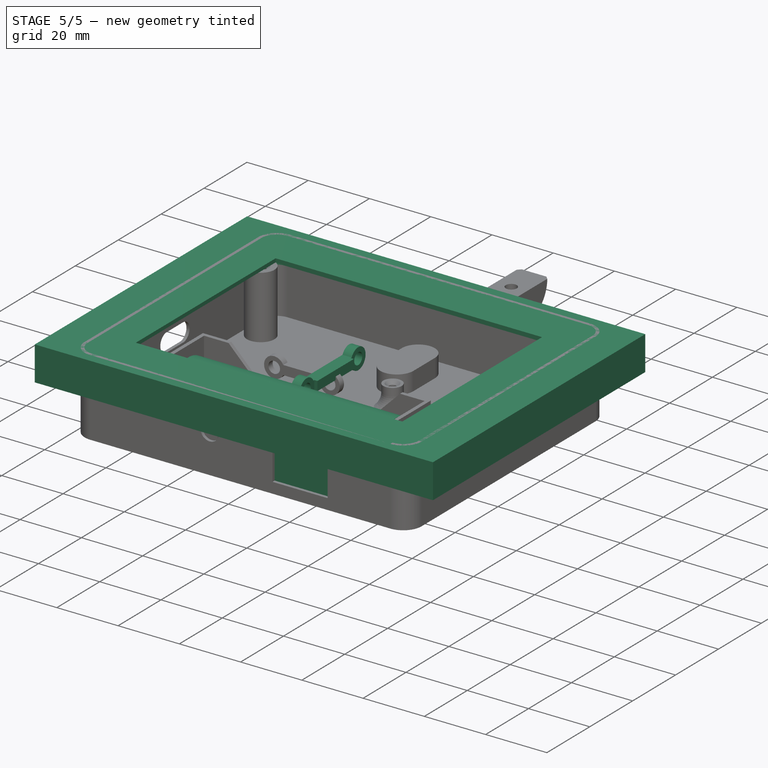
[diagram: stage 5 of 5 — iso view after this stage's code; geometry added in this stage tinted green]
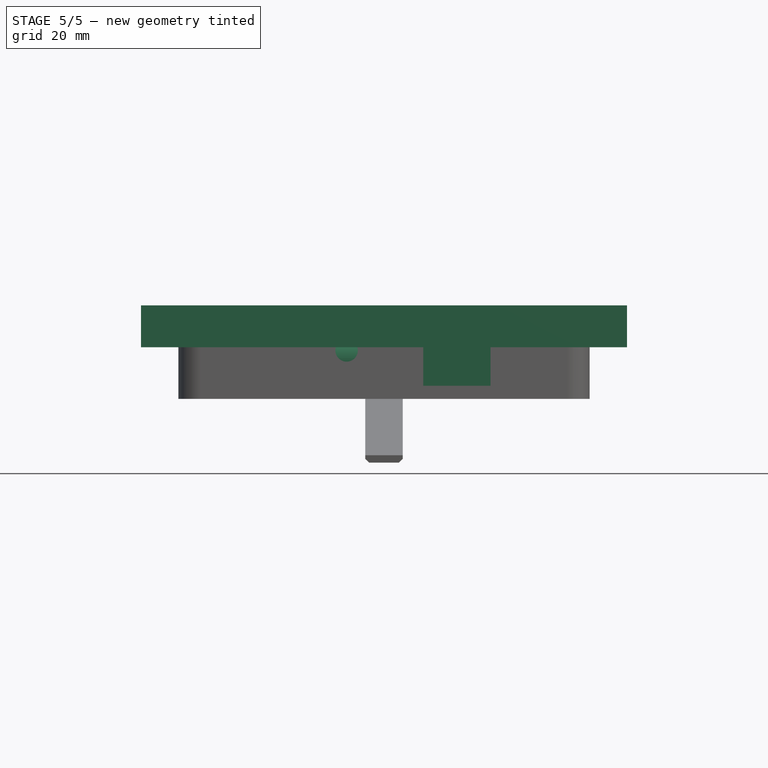
[diagram: stage 5 of 5 — front view after this stage's code; geometry added in this stage tinted green]
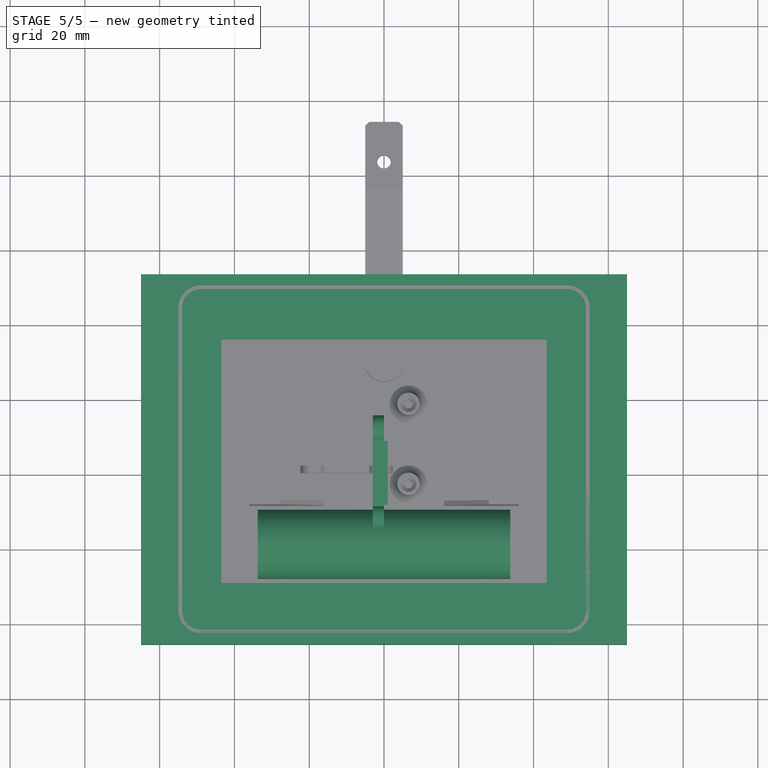
[diagram: stage 5 of 5 — top view after this stage's code; geometry added in this stage tinted green]
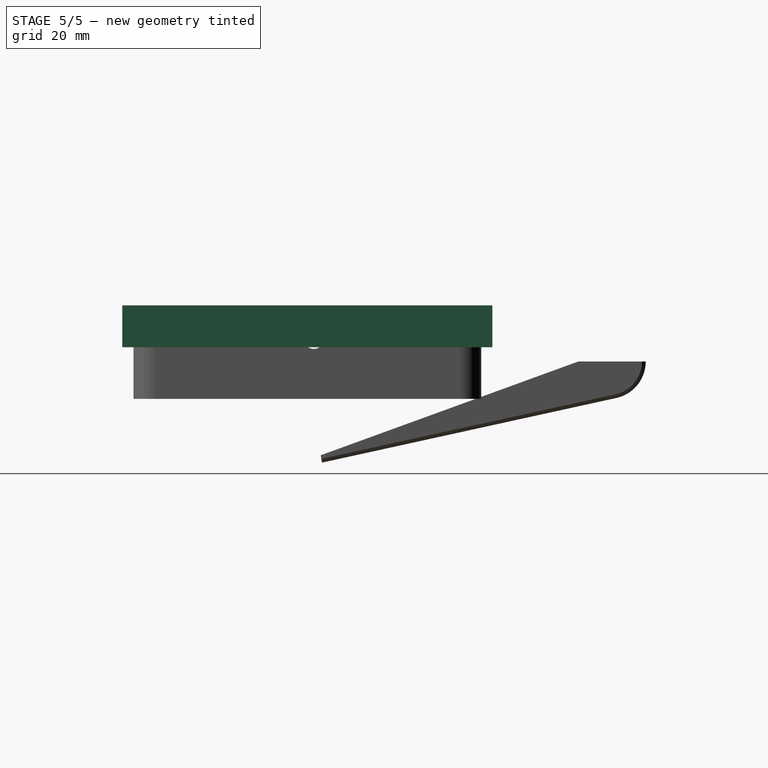
[diagram: stage 5 of 5 — right view after this stage's code; geometry added in this stage tinted green]
FEATURE [Part::Feature] Part__Feature  label="W\X\FCrth 629105150521 Micro USB (Housing)"
  Placement = pos=(-1e-14,0.7,0.04) rot=(0,0,1;0rad)
  shape: bbox 6.903 x 5.203 x 3.203 mm, 184 faces (baked)
FEATURE [Part::Feature] Part__Feature001  label="W\X\FCrth 629105150521 Micro USB (Inner Shield)"
  Placement = pos=(-2.8e-14,9e-15,2.14) rot=(0,0,1;0rad)
  shape: bbox 0.6 x 0.5067 x 0.6278 mm, 10 faces (baked)
FEATURE [Part::Feature] Part__Feature002  label="W\X\FCrth 629105150521 Micro USB (Inner Shield)"
  Placement = pos=(-2.8e-14,9e-15,2.14) rot=(0,0,1;0rad)
  shape: bbox 7.4 x 6.6 x 4.15 mm, 268 faces (baked)
FEATURE [Part::Feature] Part__Feature003  label="W\X\FCrth 629105150521 Micro USB (Inner Shield)"
  Placement = pos=(-2.8e-14,9e-15,2.14) rot=(0,0,1;0rad)
  shape: bbox 0.6 x 0.5067 x 0.6278 mm, 10 faces (baked)
FEATURE [App::Part] W_X_FCrth_629105150521_Micro_USB__Inner_Shield_  label="W\X\FCrth 629105150521 Micro USB (Inner Shield)"
  Group = -> [Part__Feature001,Part__Feature002,Part__Feature003]
  Origin = -> Origin001
FEATURE [Part::Feature] Part__Feature004  label="W\X\FCrth 629105150521 Micro USB (Outer Shield)"
  Placement = pos=(-2.4e-14,0.6,2.39) rot=(0,0,1;0rad)
  shape: bbox 8 x 5.4 x 4.4 mm, 122 faces (baked)
FEATURE [Part::Feature] Part__Feature005  label="W\X\FCrth 629105150521 Micro USB ( Contact 1,2,4,5)"
  Placement = pos=(-1.3,3.303,0.15) rot=(0.57735,0.57735,0.57735;2.0944rad)
  shape: bbox 0.25 x 5.203 x 1.51 mm, 19 faces (baked)
FEATURE [Part::Feature] Part__Feature006  label="W\X\FCrth 629105150521 Micro USB ( Contact 1,2,4,5)"
  Placement = pos=(-0.65,3.303,0.15) rot=(0.57735,0.57735,0.57735;2.0944rad)
  shape: bbox 0.25 x 5.203 x 1.51 mm, 19 faces (baked)
FEATURE [Part::Feature] Part__Feature007  label="W\X\FCrth 629105150521 Micro USB ( Contact 1,2,4,5)"
  Placement = pos=(0.65,3.303,0.15) rot=(0.57735,0.57735,0.57735;2.0944rad)
  shape: bbox 0.25 x 5.203 x 1.51 mm, 19 faces (baked)
FEATURE [Part::Feature] Part__Feature008  label="W\X\FCrth 629105150521 Micro USB ( Contact 1,2,4,5)"
  Placement = pos=(1.3,3.303,0.15) rot=(0.57735,0.57735,0.57735;2.0944rad)
  shape: bbox 0.25 x 5.203 x 1.51 mm, 19 faces (baked)
FEATURE [Part::Feature] Part__Feature009  label="W\X\FCrth 629105150521 Micro USB ( Contact 3)"
  Placement = pos=(-7e-15,3.303,0.15) rot=(0.57735,0.57735,0.57735;2.0944rad)
  shape: bbox 0.25 x 5.203 x 1.51 mm, 19 faces (baked)
FEATURE [App::Part] W_X_FCrth_629105150521_Micro_USB_Connector_Right_Amgle_Receptacle_v1  label="W\X\FCrth 629105150521 Micro USB Connector Right Amgle Receptacle v1"
  Group = -> [Part__Feature,W_X_FCrth_629105150521_Micro_USB__Inner_Shield_,Part__Feature004,Part__Feature005,Part__Feature006,Part__Feature007,Part__Feature008,Part__Feature009]
  Origin = -> Origin002
  Placement = pos=(4.228,5.8e-15,-31.177) rot=(1,0,0;1.5708rad)
FEATURE [Part::Feature] Part__Feature010  label="B2B-PH-K-S v1"
  Placement = pos=(-5.54428,-4.66537,-22.4811) rot=(0,1,0;3.14159rad)
  shape: bbox 5.9 x 4.5 x 6 mm, 52 faces (baked)
FEATURE [Part::Feature] Part__Feature011  label="B2B-PH-K-S v1"
  Placement = pos=(-5.54428,-4.66537,-22.4811) rot=(0,1,0;3.14159rad)
  shape: bbox 0.5 x 0.5 x 8.4 mm, 14 faces (baked)
FEATURE [Part::Feature] Part__Feature012  label="B2B-PH-K-S v1"
  Placement = pos=(-5.54428,-4.66537,-22.4811) rot=(0,1,0;3.14159rad)
  shape: bbox 0.5 x 0.5 x 8.4 mm, 14 faces (baked)
FEATURE [App::Part] B2B_PH_K_S_v1  label="B2B-PH-K-S v1"
  Group = -> [Part__Feature010,Part__Feature011,Part__Feature012]
  Origin = -> Origin003
  Placement = pos=(2,0,-3) rot=(0,0,1;0rad)
FEATURE [Part::Feature] Part__Feature050  label="Waveshare 4.2 E-Ink - Display folded cable v1"
  Placement = pos=(0,1,0.85) rot=(1,0,0;1.5708rad)
  shape: bbox 36.21 x 16.31 x 2.744 mm, 135 faces (baked)
FEATURE [Part::Feature] Part__Feature051  label="Waveshare 4.2 E-Ink - Display folded cable v1"
  Placement = pos=(0,1,0.85) rot=(1,0,0;1.5708rad)
  shape: bbox 91.01 x 77.08 x 1.281 mm, 120 faces (baked)
FEATURE [App::Part] Waveshare_4_2_E_Ink___Display_folded_cable_v1  label="Waveshare 4.2 E-Ink - Display folded cable v1"
  Group = -> [Part__Feature050,Part__Feature051]
  Origin = -> Origin009
FEATURE [Part::Feature] Part__Feature052  label="PCB"
  shape: bbox 103 x 78.5 x 7.21 mm, 1280 faces (baked)
FEATURE [Part::Feature] Part__Feature053  label="90268A201"
  Placement = pos=(-48.4,36.15,-0.86) rot=(0,0,1;0rad)
  shape: bbox 3.666 x 3.666 x 6.35 mm, 62 faces (baked)
FEATURE [Part::Feature] Part__Feature054  label="90268A201"
  Placement = pos=(48.4,-36.15,-0.86) rot=(0,0,1;0rad)
  shape: bbox 3.666 x 3.666 x 6.35 mm, 62 faces (baked)
FEATURE [Part::Feature] Part__Feature055  label="90268A201"
  Placement = pos=(48.4,36.15,-0.86) rot=(0,0,1;0rad)
  shape: bbox 3.666 x 3.666 x 6.35 mm, 62 faces (baked)
FEATURE [Part::Feature] Part__Feature056  label="90268A201"
  Placement = pos=(-48.4,-36.15,-0.86) rot=(0,0,1;0rad)
  shape: bbox 3.666 x 3.666 x 6.35 mm, 62 faces (baked)
FEATURE [Part::Feature] Part__Feature057  label="91772A030"
  Placement = pos=(-48.4,-36.15,-5.49) rot=(0,0,1;0rad)
  shape: bbox 5.309 x 5.309 x 8.354 mm, 73 faces (baked)
FEATURE [Part::Feature] Part__Feature058  label="91772A030"
  Placement = pos=(-48.4,36.15,-5.49) rot=(0,0,1;0rad)
  shape: bbox 5.309 x 5.309 x 8.354 mm, 73 faces (baked)
FEATURE [Part::Feature] Part__Feature059  label="91772A030"
  Placement = pos=(48.4,36.15,-5.49) rot=(0,0,1;0rad)
  shape: bbox 5.309 x 5.309 x 8.354 mm, 73 faces (baked)
FEATURE [Part::Feature] Part__Feature060  label="91772A030"
  Placement = pos=(48.4,-36.15,-5.49) rot=(0,0,1;0rad)
  shape: bbox 5.309 x 5.309 x 8.354 mm, 73 faces (baked)
FEATURE [App::Part] Screws_Nuts  label="Screws&Nuts"
  Group = -> [Part__Feature053,Part__Feature054,Part__Feature055,Part__Feature056,Part__Feature057,Part__Feature058,Part__Feature059,Part__Feature060]
  Origin = -> Origin010
FEATURE [App::Part] Waveshare_4_2__e_Paper_Module_v1  label="Waveshare 4.2" e-Paper Module v1"
  Group = -> [Waveshare_4_2_E_Ink___Display_folded_cable_v1,Part__Feature052,Screws_Nuts]
  Origin = -> Origin011
  Placement = pos=(0,-0.5,-4) rot=(0,0,1;0rad)
FEATURE [Part::Feature] Body001001  label="SOLID"
  shape: bbox 25.4 x 1.6 x 61.8 mm, 9 faces (baked)
FEATURE [App::Part] Wemos_Lolin_D32_v10  label="Wemos Lolin D32 v10"
  Group = -> [W_X_FCrth_629105150521_Micro_USB_Connector_Right_Amgle_Receptacle_v1,B2B_PH_K_S_v1,Body001001]
  Origin = -> Origin007
  Placement = pos=(-20,8,-16.5) rot=(-0.57735,0.57735,-0.57735;2.0944rad)
FEATURE [Part::Cylinder] Cylinder  label="Battery"
  Angle = 360
  AttacherType = Attacher::AttachEngine3D
  FirstAngle = 0
  Height = 67.5
  Placement = pos=(-33.75,-19,-15) rot=(0.57735,0.57735,0.57735;2.0944rad)
  Radius = 9.25
  SecondAngle = 0
FEATURE [Part::Feature] Body001002  label="Frame"
  shape: bbox 110 x 93 x 8.2 mm, 55 faces (baked)
FEATURE [Part::Box] Box  label="DHT22"
  AttacherType = Attacher::AttachEngine3D
  Height = 8
  Length = 15.54
  Placement = pos=(34,-34,-24.5) rot=(0.57735,-0.57735,0.57735;2.0944rad)
  Width = 25.5
FEATURE [PartDesign::FeatureBase] BaseFeature001
  BaseFeature = -> Body001002
FEATURE [Sketcher::SketchObject] Sketch015
  FullyConstrained = true
  MapMode = 5
  Placement = pos=(0,-40.6,3.015e-12) rot=(0,0.707107,0.707107;3.14159rad)
  Support = -> [BaseFeature001]
  sketch-geometry (1):
    g0: Circle CenterX=9.9258 CenterY=-13.2177 CenterZ=0 NormalX=0 NormalY=0 NormalZ=1 AngleXU=0 Radius=9
  constraints (3):
    c: DistanceX(g0) = 9.9258
    c: DistanceY(g0) = -13.2177
    c: Diameter(g0) = 18
FEATURE [PartDesign::Pocket] Pocket008
  BaseFeature = -> BaseFeature001
  Direction = (1,1,1)
  Length = 5
  Length2 = 100
  Profile = -> Sketch015
  Refine = true
  Type = 1
FEATURE [Sketcher::SketchObject] Sketch016
  ExternalGeometry = -> [Pocket008]
  FullyConstrained = true
  MapMode = 5
  Support = -> [Pocket008]
  sketch-geometry (9):
    g0: LineSegment StartX=-65 StartY=53 StartZ=0 EndX=65 EndY=53 EndZ=0
    g1: LineSegment StartX=65 StartY=53 StartZ=0 EndX=65 EndY=-46 EndZ=0
    g2: LineSegment StartX=65 StartY=-46 StartZ=0 EndX=-65 EndY=-46 EndZ=0
    g3: LineSegment StartX=-65 StartY=-46 StartZ=0 EndX=-65 EndY=53 EndZ=0
    g4: LineSegment StartX=49 StartY=3.5 StartZ=0 EndX=-49 EndY=3.5 EndZ=0
    g5: LineSegment StartX=-44.5 StartY=36.6 StartZ=0 EndX=44.5 EndY=36.6 EndZ=0
    g6: LineSegment StartX=44.5 StartY=36.6 StartZ=0 EndX=44.5 EndY=-29.6 EndZ=0
    g7: LineSegment StartX=44.5 StartY=-29.6 StartZ=0 EndX=-44.5 EndY=-29.6 EndZ=0
    g8: LineSegment StartX=-44.5 StartY=-29.6 StartZ=0 EndX=-44.5 EndY=36.6 EndZ=0
  constraints (23):
    c: Coincident(g0,g1)
    c: Coincident(g1,g2)
    c: Coincident(g2,g3)
    c: Coincident(g3,g0)
    c: Horizontal(g2)
    c: Vertical(g3)
    c: DistanceY(g-3,g0) = 3
    c: Symmetric(g0,g0,g-2)
    c: Symmetric(g-4,g-3,g4)
    c: Equal(g4,g-3)
    c: DistanceX(g-3,g4) = 0
    c: Symmetric(g1,g0,g4)
    c: DistanceX(g0,g-5) = 10
    c: Coincident(g5,g6)
    c: Coincident(g6,g7)
    c: Coincident(g7,g8)
    c: Coincident(g8,g5)
    c: Horizontal(g7)
    c: Vertical(g6)
    c: Symmetric(g5,g5,g-2)
    c: Symmetric(g7,g5,g4)
    c: DistanceX(g5,g-7) = 1
    c: DistanceY(g-6,g5) = 1
FEATURE [PartDesign::Pad] Pad006
  BaseFeature = -> Pocket008
  Direction = (0,0,1)
  Length = 10
  Length2 = 100
  Profile = -> Sketch016
  ReferenceAxis = -> Sketch016 [N_Axis]
  Refine = true
  Reversed = true
  Type = 3
  UpToFace = -> Pocket008 [Face5]
FEATURE [Sketcher::SketchObject] Sketch017
  ExternalGeometry = -> [Pad006]
  FullyConstrained = true
  MapMode = 5
  Support = -> [Pad006]
  sketch-geometry (4):
    g0: LineSegment StartX=-43.5 StartY=35.6 StartZ=0 EndX=43.5 EndY=35.6 EndZ=0
    g1: LineSegment StartX=43.5 StartY=35.6 StartZ=0 EndX=43.5 EndY=-29.6 EndZ=0
    g2: LineSegment StartX=43.5 StartY=-29.6 StartZ=0 EndX=-43.5 EndY=-29.6 EndZ=0
    g3: LineSegment StartX=-43.5 StartY=-29.6 StartZ=0 EndX=-43.5 EndY=35.6 EndZ=0
  constraints (12):
    c: Coincident(g0,g1)
    c: Coincident(g1,g2)
    c: Coincident(g2,g3)
    c: Coincident(g3,g0)
    c: Horizontal(g0)
    c: Horizontal(g2)
    c: Vertical(g1)
    c: Vertical(g3)
    c: PointOnObject(g-4,g0)
    c: PointOnObject(g-3,g3)
    c: PointOnObject(g-5,g1)
    c: PointOnObject(g-6,g2)
FEATURE [PartDesign::Pocket] Pocket009
  BaseFeature = -> Pad006
  Direction = (1,1,1)
  Length = 5
  Length2 = 100
  Profile = -> Sketch017
  Refine = true
  Type = 1
FEATURE [Sketcher::SketchObject] Sketch018
  ExternalGeometry = -> [Pocket009]
  FullyConstrained = true
  MapMode = 5
  Placement = pos=(0,0,-1.2) rot=(1,0,0;3.14159rad)
  Support = -> [Pocket009]
  sketch-geometry (8):
    g0: LineSegment StartX=-65 StartY=46 StartZ=0 EndX=65 EndY=46 EndZ=0
    g1: LineSegment StartX=65 StartY=46 StartZ=0 EndX=65 EndY=-53 EndZ=0
    g2: LineSegment StartX=65 StartY=-53 StartZ=0 EndX=-65 EndY=-53 EndZ=0
    g3: LineSegment StartX=-65 StartY=-53 StartZ=0 EndX=-65 EndY=46 EndZ=0
    g4: LineSegment StartX=-63.8 StartY=44.8 StartZ=0 EndX=63.8 EndY=44.8 EndZ=0
    g5: LineSegment StartX=63.8 StartY=44.8 StartZ=0 EndX=63.8 EndY=-51.8 EndZ=0
    g6: LineSegment StartX=63.8 StartY=-51.8 StartZ=0 EndX=-63.8 EndY=-51.8 EndZ=0
    g7: LineSegment StartX=-63.8 StartY=-51.8 StartZ=0 EndX=-63.8 EndY=44.8 EndZ=0
  constraints (22):
    c: Coincident(g0,g1)
    c: Coincident(g1,g2)
    c: Coincident(g2,g3)
    c: Coincident(g3,g0)
    c: Horizontal(g0)
    c: Horizontal(g2)
    c: Vertical(g1)
    c: Vertical(g3)
    c: Coincident(g0,g-3)
    c: Coincident(g1,g-4)
    c: Coincident(g4,g5)
    c: Coincident(g5,g6)
    c: Coincident(g6,g7)
    c: Coincident(g7,g4)
    c: Horizontal(g4)
    c: Horizontal(g6)
    c: Vertical(g5)
    c: Vertical(g7)
    c: DistanceX(g4,g0) = -1.2
    c: DistanceY(g4,g0) = 1.2
    c: DistanceX(g1,g5) = -1.2
    c: DistanceY(g1,g5) = 1.2
FEATURE [PartDesign::Pad] Pad007
  BaseFeature = -> Pocket009
  Direction = (0,0,-1)
  Length = 10
  Length2 = 100
  Profile = -> Sketch018
  ReferenceAxis = -> Sketch018 [N_Axis]
  Refine = true
  Type = 0
FEATURE [Sketcher::SketchObject] Sketch024
  FullyConstrained = true
  MapMode = 5
  Placement = pos=(0,0,0) rot=(0.57735,0.57735,0.57735;2.0944rad)
  Support = -> [YZ_Plane016]
  sketch-geometry (7):
    g0: Circle CenterX=-11.9986 CenterY=-8.95363 CenterZ=0 NormalX=0 NormalY=0 NormalZ=1 AngleXU=0 Radius=1.9
    g1: Circle CenterX=12.0014 CenterY=-8.95363 CenterZ=0 NormalX=0 NormalY=0 NormalZ=1 AngleXU=0 Radius=1.9
    g2: LineSegment StartX=12.0014 StartY=-8.95363 StartZ=0 EndX=-11.9986 EndY=-8.95363 EndZ=0
    g3: ArcOfCircle CenterX=-11.9986 CenterY=-8.95363 CenterZ=0 NormalX=0 NormalY=0 NormalZ=1 AngleXU=0 Radius=3.4 StartAngle=0.456909 EndAngle=5.82628
    g4: ArcOfCircle CenterX=12.0014 CenterY=-8.95363 CenterZ=0 NormalX=0 NormalY=0 NormalZ=1 AngleXU=0 Radius=3.4 StartAngle=3.5985 EndAngle=8.96787
    g5: LineSegment StartX=-8.94734 StartY=-7.45363 StartZ=0 EndX=8.9502 EndY=-7.45363 EndZ=0
    g6: LineSegment StartX=-8.94734 StartY=-10.4536 StartZ=0 EndX=8.9502 EndY=-10.4536 EndZ=0
  constraints (20):
    c: Coincident(g2,g1)
    c: Coincident(g2,g0)
    c: Horizontal(g2)
    c: DistanceX(g0) = -11.9986
    c: DistanceY(g0) = -8.95363
    c: DistanceX(g2,g2) = 24
    c: Equal(g1,g0)
    c: Diameter(g1) = 3.8
    c: Coincident(g3,g0)
    c: Coincident(g4,g1)
    c: Coincident(g5,g3)
    c: Horizontal(g5)
    c: Coincident(g6,g3)
    c: Coincident(g6,g4)
    c: Horizontal(g6)
    c: Equal(g6,g5)
    c: DistanceY(g3,g3) = 3
    c: Coincident(g4,g5)
    c: Equal(g4,g3)
    c: Diameter(g3) = 6.8
FEATURE [PartDesign::Pad] Pad010
  Direction = (1,-2e-16,3e-16)
  Length = 3
  Length2 = 10
  Placement = pos=(0,0,0) rot=(0.57735,0.57735,0.57735;2.0944rad)
  Profile = -> Sketch024
  ReferenceAxis = -> Sketch024 [N_Axis]
  Refine = true
  Reversed = true
  Type = 0
FEATURE [Sketcher::SketchObject] Sketch025
  ExternalGeometry = -> [Pad010]
  FullyConstrained = true
  MapMode = 5
  Placement = pos=(0,0,0) rot=(0.57735,0.57735,0.57735;2.0944rad)
  Support = -> [Pad010]
  sketch-geometry (4):
    g0: LineSegment StartX=-8.5 StartY=-7.45363 StartZ=0 EndX=8.5 EndY=-7.45363 EndZ=0
    g1: LineSegment StartX=8.5 StartY=-7.45363 StartZ=0 EndX=8.5 EndY=-10.4536 EndZ=0
    g2: LineSegment StartX=8.5 StartY=-10.4536 StartZ=0 EndX=-8.5 EndY=-10.4536 EndZ=0
    g3: LineSegment StartX=-8.5 StartY=-10.4536 StartZ=0 EndX=-8.5 EndY=-7.45363 EndZ=0
  constraints (11):
    c: Coincident(g0,g1)
    c: Coincident(g1,g2)
    c: Coincident(g2,g3)
    c: Coincident(g3,g0)
    c: Horizontal(g0)
    c: Vertical(g1)
    c: Vertical(g3)
    c: PointOnObject(g0,g-3)
    c: Symmetric(g1,g2,g-2)
    c: DistanceX(g0,g0) = 17
    c: PointOnObject(g1,g-4)
FEATURE [PartDesign::Pad] Pad011
  BaseFeature = -> Pad010
  Direction = (1,-7e-16,3e-16)
  Length = 1
  Length2 = 10
  Placement = pos=(0,0,0) rot=(0.57735,0.57735,0.57735;2.0944rad)
  Profile = -> Sketch025
  ReferenceAxis = -> Sketch025 [N_Axis]
  Refine = true
  Type = 0
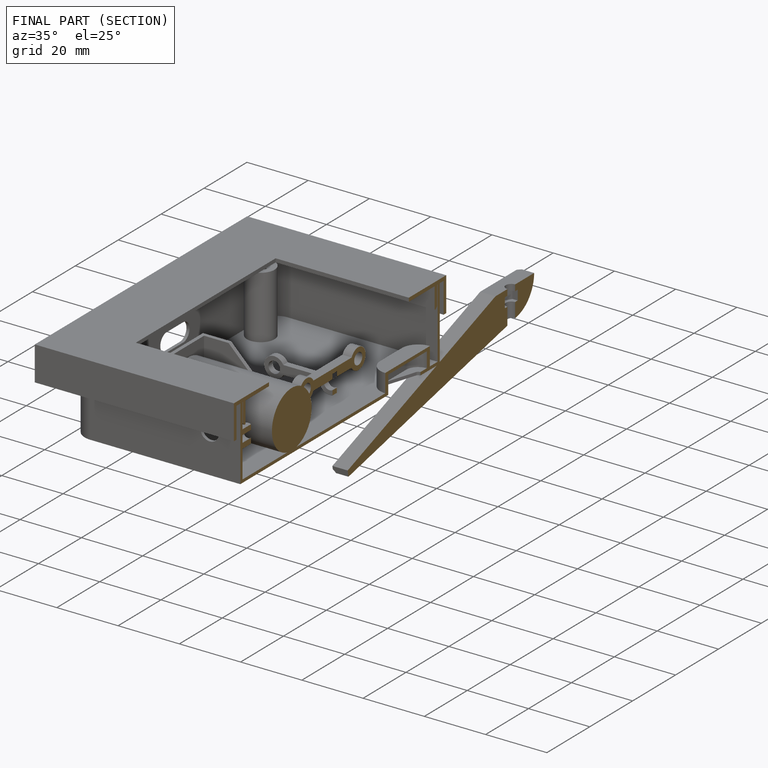
[diagram: finished part — half-section view (interior)]
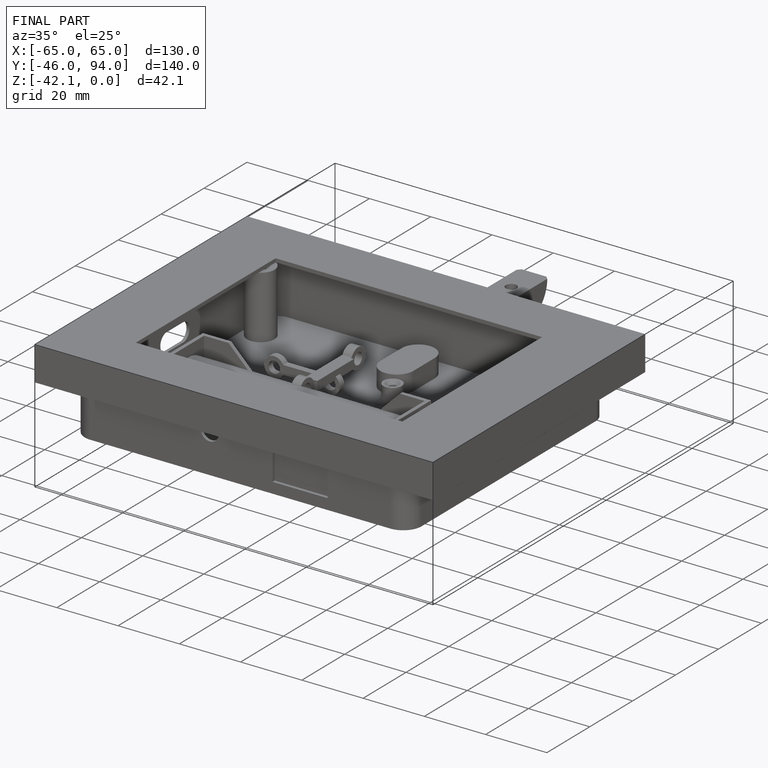
[diagram: finished part — iso view with bounding-box wireframe]
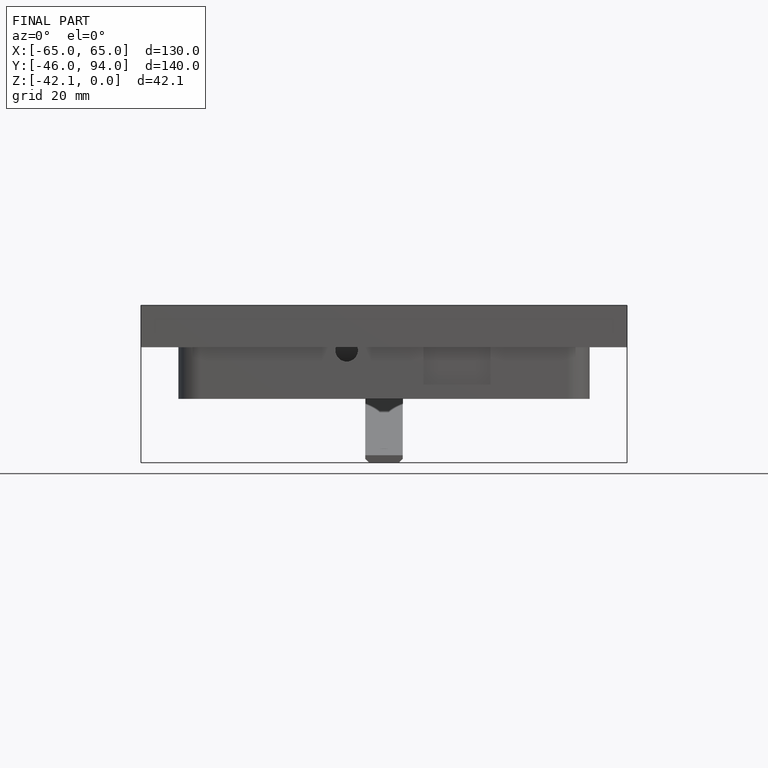
[diagram: finished part — front view with bounding-box wireframe]
